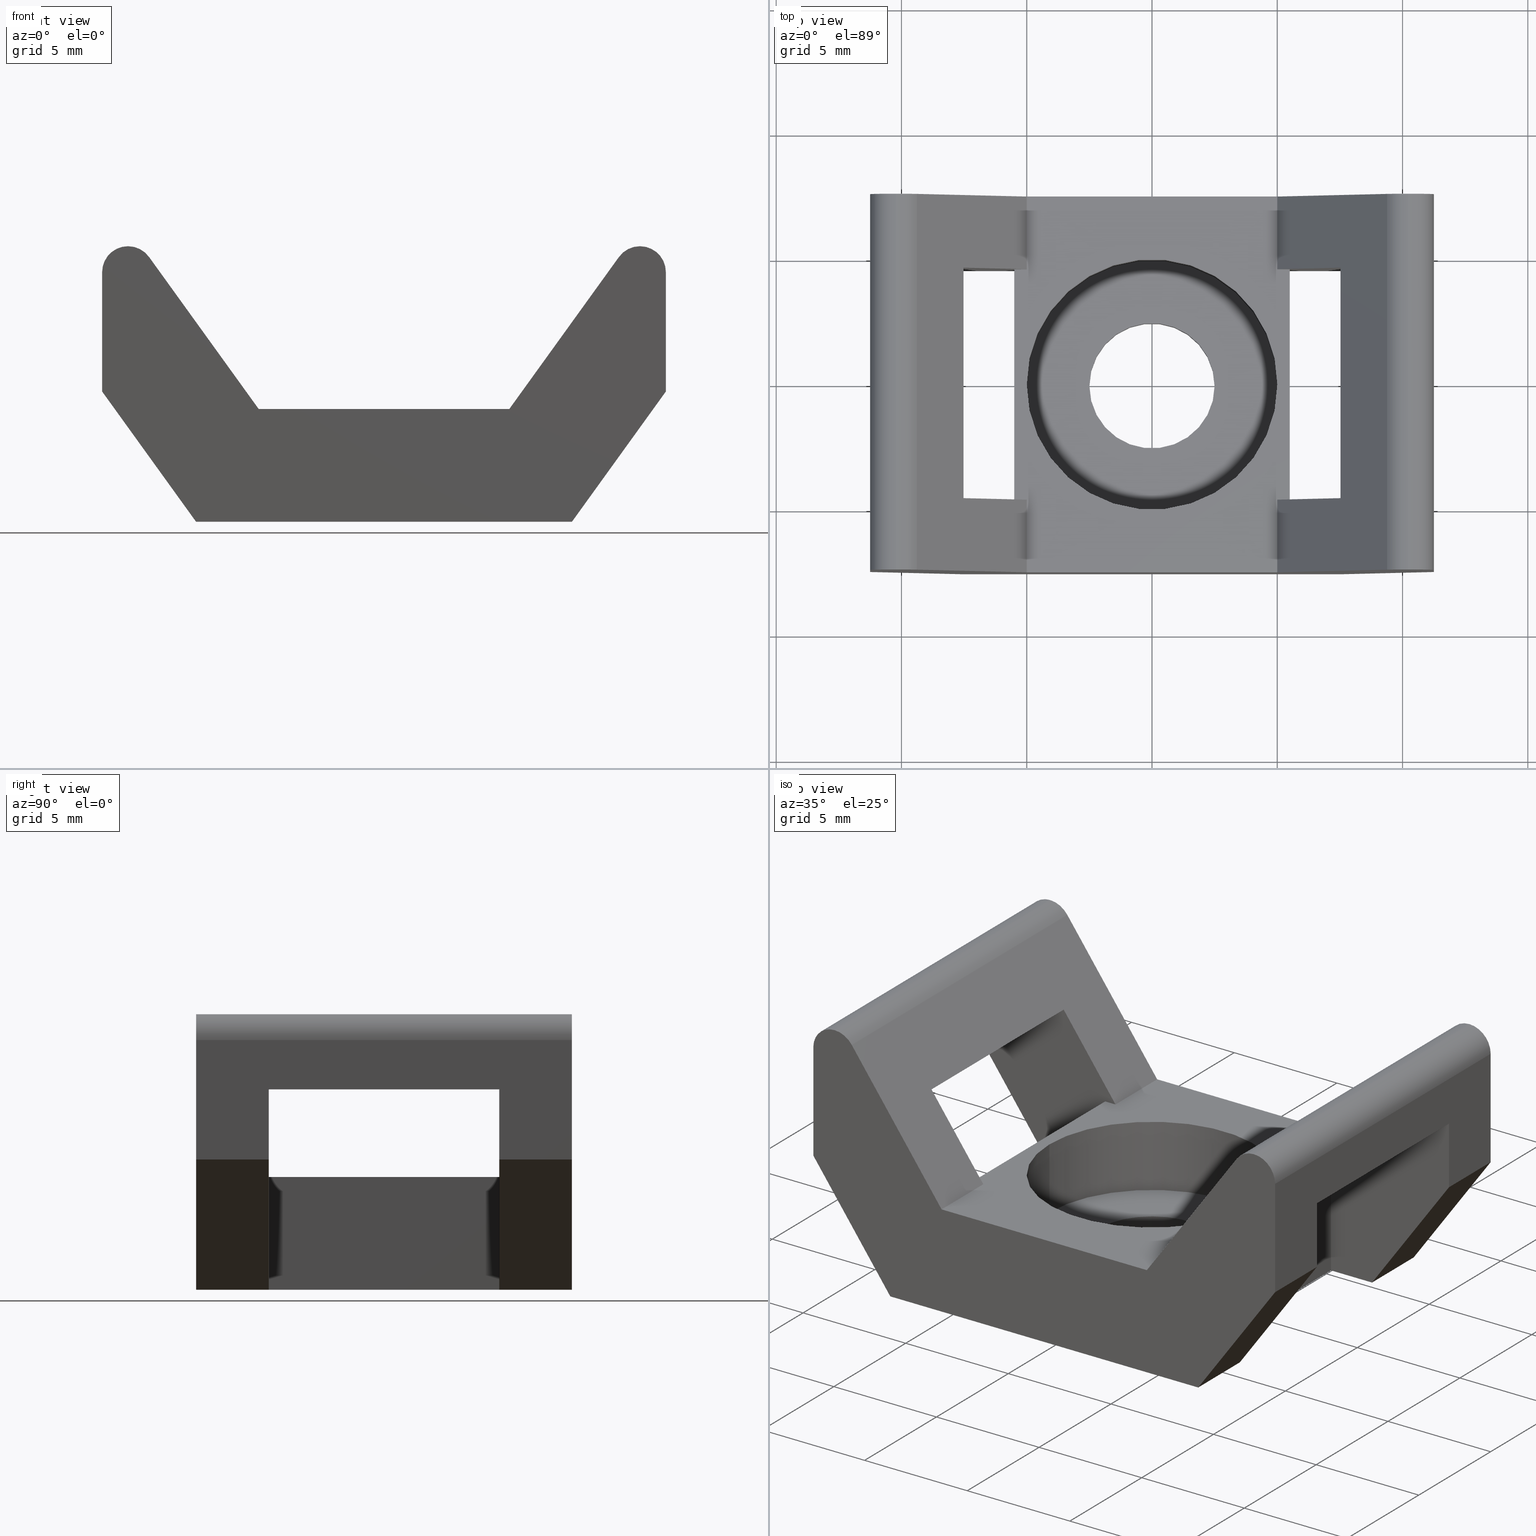
[diagram: canonical four-view strip — front | top / right | iso, engineering-drawing reading convention]
A machine part, canonical four-view strip (front | top / right | iso — engineering-drawing reading convention). The complete STEP part file that produces these views, byte-faithful:
ISO-10303-21;
HEADER;
FILE_DESCRIPTION (( 'STEP AP203' ),
    '1' );
FILE_NAME ('285400000_c_1.STEP',
    '2023-03-17T04:37:13',
    ( '' ),
    ( '' ),
    'SwSTEP 2.0',
    'SolidWorks 2014',
    '' );
FILE_SCHEMA (( 'CONFIG_CONTROL_DESIGN' ));
ENDSEC;

DATA;
#1 = CARTESIAN_POINT ( 'NONE',  ( -5.000000000000000000, 6.123233995736766300E-016, 1.500000000000000000 ) ) ;
#2 = CARTESIAN_POINT ( 'NONE',  ( 0.0000000000000000000, 0.0000000000000000000, 3.000000000000000000 ) ) ;
#3 = CARTESIAN_POINT ( 'NONE',  ( 9.378116215530869900, -7.500000000000000000, 10.57098781886948100 ) ) ;
#4 = CARTESIAN_POINT ( 'NONE',  ( -11.25000000000000000, 7.500000000000000000, 4.608755534657079900 ) ) ;
#5 = PLANE ( 'NONE',  #1065 ) ;
#6 = EDGE_LOOP ( 'NONE', ( #1077, #169, #1087, #907, #816, #1076, #1061 ) ) ;
#7 = CARTESIAN_POINT ( 'NONE',  ( 11.25000000000000000, 0.0000000000000000000, 5.200000000000001100 ) ) ;
#8 = LINE ( 'NONE', #598, #544 ) ;
#9 = ORIENTED_EDGE ( 'NONE', *, *, #251, .T. ) ;
#10 = VECTOR ( 'NONE', #156, 1000.000000000000000 ) ;
#11 = ORIENTED_EDGE ( 'NONE', *, *, #46, .F. ) ;
#12 = CC_DESIGN_PERSON_AND_ORGANIZATION_ASSIGNMENT ( #106, #960, ( #1056 ) ) ;
#13 = ORIENTED_EDGE ( 'NONE', *, *, #570, .F. ) ;
#14 = CARTESIAN_POINT ( 'NONE',  ( -11.24999999999999800, -4.599999999999999600, 8.000000000000010700 ) ) ;
#15 = DIRECTION ( 'NONE',  ( -0.0000000000000000000, -1.000000000000000000, -0.0000000000000000000 ) ) ;
#16 = EDGE_CURVE ( 'NONE', #324, #590, #821, .T. ) ;
#17 = AXIS2_PLACEMENT_3D ( 'NONE', #757, #835, #1082 ) ;
#18 = CARTESIAN_POINT ( 'NONE',  ( 7.500000000000000000, -7.500000000000000000, -8.673617379884035500E-016 ) ) ;
#19 = VECTOR ( 'NONE', #990, 1000.000000000000000 ) ;
#20 = VECTOR ( 'NONE', #737, 1000.000000000000000 ) ;
#21 = CARTESIAN_POINT ( 'NONE',  ( -11.25000000000000000, 0.0000000000000000000, 5.200000000000001100 ) ) ;
#22 = AXIS2_PLACEMENT_3D ( 'NONE', #270, #265, #965 ) ;
#23 = VERTEX_POINT ( 'NONE', #560 ) ;
#24 = LINE ( 'NONE', #769, #764 ) ;
#25 = ORIENTED_EDGE ( 'NONE', *, *, #488, .F. ) ;
#26 = ORIENTED_EDGE ( 'NONE', *, *, #792, .T. ) ;
#27 = CARTESIAN_POINT ( 'NONE',  ( -7.500000000000000000, 7.500000000000002700, 3.321799189091548800E-015 ) ) ;
#28 = EDGE_CURVE ( 'NONE', #244, #983, #633, .T. ) ;
#29 = LINE ( 'NONE', #316, #220 ) ;
#30 = LOCAL_TIME ( 21, 37, 13.00000000000000000, #878 ) ;
#31 = LINE ( 'NONE', #631, #371 ) ;
#32 = LINE ( 'NONE', #752, #430 ) ;
#33 = ORIENTED_EDGE ( 'NONE', *, *, #747, .F. ) ;
#34 = MECHANICAL_CONTEXT ( 'NONE', #449, 'mechanical' ) ;
#35 = VERTEX_POINT ( 'NONE', #1067 ) ;
#36 = DIRECTION ( 'NONE',  ( 1.000000000000000000, 0.0000000000000000000, 0.0000000000000000000 ) ) ;
#37 = EDGE_CURVE ( 'NONE', #590, #798, #597, .T. ) ;
#38 = LINE ( 'NONE', #909, #741 ) ;
#39 = FACE_BOUND ( 'NONE', #515, .T. ) ;
#40 = VECTOR ( 'NONE', #124, 1000.000000000000000 ) ;
#41 = ORIENTED_EDGE ( 'NONE', *, *, #37, .F. ) ;
#42 = CARTESIAN_POINT ( 'NONE',  ( -5.500000000000000000, 4.599999999999999600, 3.061616997868379900E-015 ) ) ;
#43 = CIRCLE ( 'NONE', #125, 5.000000000000000000 ) ;
#44 = VERTEX_POINT ( 'NONE', #151 ) ;
#45 = DIRECTION ( 'NONE',  ( 1.000000000000000000, 0.0000000000000000000, 0.0000000000000000000 ) ) ;
#46 = EDGE_CURVE ( 'NONE', #983, #440, #583, .T. ) ;
#47 = CARTESIAN_POINT ( 'NONE',  ( 11.25000000000000000, 4.599999999999999600, -2.066591473561160000E-015 ) ) ;
#48 = CARTESIAN_POINT ( 'NONE',  ( 5.500000000000000900, 4.599999999999999600, 4.500000000000000900 ) ) ;
#49 = ADVANCED_FACE ( 'NONE', ( #181 ), #659, .T. ) ;
#50 = CARTESIAN_POINT ( 'NONE',  ( 0.0000000000000000000, 0.0000000000000000000, -24.69332115398999900 ) ) ;
#51 = CARTESIAN_POINT ( 'NONE',  ( -5.000000000000000000, 7.500000000000000000, 4.500000000000000900 ) ) ;
#52 = ADVANCED_FACE ( 'NONE', ( #355 ), #594, .T. ) ;
#53 = VECTOR ( 'NONE', #804, 1000.000000000000000 ) ;
#54 = VECTOR ( 'NONE', #1019, 1000.000000000000200 ) ;
#55 = ORIENTED_EDGE ( 'NONE', *, *, #155, .F. ) ;
#56 = FACE_OUTER_BOUND ( 'NONE', #761, .T. ) ;
#57 = ORIENTED_EDGE ( 'NONE', *, *, #93, .T. ) ;
#58 = ORIENTED_EDGE ( 'NONE', *, *, #275, .T. ) ;
#59 = DIRECTION ( 'NONE',  ( 0.0000000000000000000, -1.000000000000000000, -0.0000000000000000000 ) ) ;
#60 = CARTESIAN_POINT ( 'NONE',  ( 11.25000000000000000, 7.500000000000000000, 5.200000000000001100 ) ) ;
#61 = EDGE_CURVE ( 'NONE', #294, #484, #347, .T. ) ;
#62 = CARTESIAN_POINT ( 'NONE',  ( 5.500000000000000000, 4.599999999999999600, 4.500000000000000900 ) ) ;
#63 = DIRECTION ( 'NONE',  ( 1.000000000000000000, 0.0000000000000000000, 0.0000000000000000000 ) ) ;
#64 = PLANE ( 'NONE',  #1032 ) ;
#65 = VECTOR ( 'NONE', #229, 1000.000000000000000 ) ;
#66 = FACE_OUTER_BOUND ( 'NONE', #748, .T. ) ;
#67 = DIRECTION ( 'NONE',  ( -0.0000000000000000000, -0.0000000000000000000, -1.000000000000000000 ) ) ;
#68 = EDGE_LOOP ( 'NONE', ( #99, #483, #787, #239, #338, #9, #871, #373, #800, #902, #58, #873 ) ) ;
#69 = VECTOR ( 'NONE', #899, 1000.000000000000100 ) ;
#70 = ADVANCED_FACE ( 'NONE', ( #126 ), #303, .T. ) ;
#71 = CARTESIAN_POINT ( 'NONE',  ( 11.24999999999999600, 7.500000000000000000, 9.966432677805810800 ) ) ;
#72 = AXIS2_PLACEMENT_3D ( 'NONE', #820, #981, #565 ) ;
#73 = DIRECTION ( 'NONE',  ( 0.5849209123409880900, 0.0000000000000000000, -0.8110903317795041800 ) ) ;
#74 = CARTESIAN_POINT ( 'NONE',  ( 5.000000000000000000, 0.0000000000000000000, 4.500000000000000900 ) ) ;
#75 = DIRECTION ( 'NONE',  ( -0.5849209123409882000, 0.0000000000000000000, -0.8110903317795040700 ) ) ;
#76 = CARTESIAN_POINT ( 'NONE',  ( -7.524038461538469700, 0.0000000000000000000, 8.000000000000000000 ) ) ;
#77 = DIRECTION ( 'NONE',  ( 0.0000000000000000000, 1.000000000000000000, 0.0000000000000000000 ) ) ;
#78 = EDGE_CURVE ( 'NONE', #468, #187, #195, .T. ) ;
#79 = CIRCLE ( 'NONE', #245, 1.033567322194190600 ) ;
#80 = PRODUCT_DEFINITION_FORMATION_WITH_SPECIFIED_SOURCE ( 'ANY', '', #116, .NOT_KNOWN. ) ;
#81 = LOCAL_TIME ( 21, 37, 13.00000000000000000, #533 ) ;
#82 = VECTOR ( 'NONE', #520, 1000.000000000000000 ) ;
#83 = ORIENTED_EDGE ( 'NONE', *, *, #959, .F. ) ;
#84 = LINE ( 'NONE', #1002, #842 ) ;
#85 = DIRECTION ( 'NONE',  ( 0.0000000000000000000, 0.0000000000000000000, 1.000000000000000000 ) ) ;
#86 = ORIENTED_EDGE ( 'NONE', *, *, #231, .T. ) ;
#87 = CARTESIAN_POINT ( 'NONE',  ( 11.25000000000000000, 4.599999999999999600, 5.200000000000001100 ) ) ;
#88 = ORIENTED_EDGE ( 'NONE', *, *, #203, .F. ) ;
#89 = DIRECTION ( 'NONE',  ( 0.0000000000000000000, 1.000000000000000000, 0.0000000000000000000 ) ) ;
#90 = CARTESIAN_POINT ( 'NONE',  ( -11.25000000000000000, -7.500000000000000000, 4.608755534657079900 ) ) ;
#91 = DIRECTION ( 'NONE',  ( -3.061616997868380200E-016, 0.0000000000000000000, -1.000000000000000000 ) ) ;
#92 = CARTESIAN_POINT ( 'NONE',  ( 7.524038461538469700, -4.599999999999999600, 8.000000000000000000 ) ) ;
#93 = EDGE_CURVE ( 'NONE', #536, #1042, #838, .T. ) ;
#94 = VECTOR ( 'NONE', #893, 1000.000000000000000 ) ;
#95 = DIRECTION ( 'NONE',  ( 0.0000000000000000000, 0.0000000000000000000, 1.000000000000000000 ) ) ;
#96 = VECTOR ( 'NONE', #760, 1000.000000000000000 ) ;
#97 = LINE ( 'NONE', #250, #1024 ) ;
#98 = ORIENTED_EDGE ( 'NONE', *, *, #354, .F. ) ;
#99 = ORIENTED_EDGE ( 'NONE', *, *, #277, .T. ) ;
#100 = ORIENTED_EDGE ( 'NONE', *, *, #711, .T. ) ;
#101 = CARTESIAN_POINT ( 'NONE',  ( -11.25000000000000200, 7.500000000000000900, 5.200000000000001100 ) ) ;
#102 = EDGE_CURVE ( 'NONE', #621, #1046, #139, .T. ) ;
#103 = AXIS2_PLACEMENT_3D ( 'NONE', #777, #540, #985 ) ;
#104 = DIRECTION ( 'NONE',  ( 0.0000000000000000000, -0.0000000000000000000, -1.000000000000000000 ) ) ;
#105 = ORIENTED_EDGE ( 'NONE', *, *, #541, .T. ) ;
#106 = PERSON_AND_ORGANIZATION ( #476, #1058 ) ;
#107 = DIRECTION ( 'NONE',  ( -0.0000000000000000000, 0.0000000000000000000, 1.000000000000000000 ) ) ;
#108 = ORIENTED_EDGE ( 'NONE', *, *, #292, .F. ) ;
#109 = VECTOR ( 'NONE', #348, 1000.000000000000000 ) ;
#110 = ORIENTED_EDGE ( 'NONE', *, *, #410, .F. ) ;
#111 = LINE ( 'NONE', #908, #10 ) ;
#112 = VERTEX_POINT ( 'NONE', #418 ) ;
#113 = DIRECTION ( 'NONE',  ( 0.0000000000000000000, 0.0000000000000000000, 1.000000000000000000 ) ) ;
#114 = ADVANCED_FACE ( 'NONE', ( #784 ), #505, .F. ) ;
#115 = CYLINDRICAL_SURFACE ( 'NONE', #461, 5.000000000000000000 ) ;
#116 = PRODUCT ( '285400000_c_1', '285400000_c_1', '', ( #34 ) ) ;
#117 = CYLINDRICAL_SURFACE ( 'NONE', #1085, 2.500000000000000000 ) ;
#118 = CALENDAR_DATE ( 2023, 16, 3 ) ;
#119 = ORIENTED_EDGE ( 'NONE', *, *, #393, .F. ) ;
#120 = APPROVAL_ROLE ( '' ) ;
#121 = EDGE_CURVE ( 'NONE', #470, #867, #317, .T. ) ;
#122 = CARTESIAN_POINT ( 'NONE',  ( -2.500000000000000000, 3.061616997868383100E-016, 1.500000000000001300 ) ) ;
#123 = CARTESIAN_POINT ( 'NONE',  ( -7.500000000000000000, 4.600000000000001400, 2.220446049250309900E-015 ) ) ;
#124 = DIRECTION ( 'NONE',  ( -0.0000000000000000000, -1.000000000000000000, -0.0000000000000000000 ) ) ;
#125 = AXIS2_PLACEMENT_3D ( 'NONE', #208, #807, #644 ) ;
#126 = FACE_OUTER_BOUND ( 'NONE', #217, .T. ) ;
#127 = LOCAL_TIME ( 21, 37, 13.00000000000000000, #575 ) ;
#128 = ORIENTED_EDGE ( 'NONE', *, *, #610, .T. ) ;
#129 = ORIENTED_EDGE ( 'NONE', *, *, #274, .F. ) ;
#130 = VECTOR ( 'NONE', #853, 1000.000000000000000 ) ;
#131 = ORIENTED_EDGE ( 'NONE', *, *, #898, .T. ) ;
#132 = ORIENTED_EDGE ( 'NONE', *, *, #959, .T. ) ;
#133 = DIRECTION ( 'NONE',  ( 0.0000000000000000000, 1.000000000000000000, -0.0000000000000000000 ) ) ;
#134 = CARTESIAN_POINT ( 'NONE',  ( 11.25000000000000000, 0.0000000000000000000, 5.200000000000001100 ) ) ;
#135 = CARTESIAN_POINT ( 'NONE',  ( 5.000000000000000000, -7.500000000000000000, 4.500000000000000900 ) ) ;
#136 = DIRECTION ( 'NONE',  ( 0.0000000000000000000, 1.000000000000000000, 0.0000000000000000000 ) ) ;
#137 = CARTESIAN_POINT ( 'NONE',  ( 7.524038461538467000, 0.0000000000000000000, 8.000000000000003600 ) ) ;
#138 = CARTESIAN_POINT ( 'NONE',  ( 11.25000000000000000, 4.600000000000001400, 5.200000000000001100 ) ) ;
#139 = LINE ( 'NONE', #846, #1057 ) ;
#140 = ADVANCED_FACE ( 'NONE', ( #157 ), #115, .F. ) ;
#141 = LINE ( 'NONE', #90, #395 ) ;
#142 = VERTEX_POINT ( 'NONE', #167 ) ;
#143 = LINE ( 'NONE', #1031, #743 ) ;
#144 = ORIENTED_EDGE ( 'NONE', *, *, #713, .F. ) ;
#145 = VERTEX_POINT ( 'NONE', #366 ) ;
#146 = VERTEX_POINT ( 'NONE', #534 ) ;
#147 = DIRECTION ( 'NONE',  ( 0.0000000000000000000, 0.0000000000000000000, 1.000000000000000000 ) ) ;
#148 = EDGE_CURVE ( 'NONE', #776, #808, #611, .T. ) ;
#149 = APPROVAL ( #806, 'UNSPECIFIED' ) ;
#150 = CARTESIAN_POINT ( 'NONE',  ( -10.21643267780580000, -7.500000000000000000, 9.966432677805819700 ) ) ;
#151 = CARTESIAN_POINT ( 'NONE',  ( 11.24999999999999600, -7.500000000000000000, 9.966432677805810800 ) ) ;
#152 = CARTESIAN_POINT ( 'NONE',  ( -11.25000000000000000, -4.599999999999999600, 5.200000000000001100 ) ) ;
#153 = ADVANCED_FACE ( 'NONE', ( #333 ), #511, .T. ) ;
#154 = DIRECTION ( 'NONE',  ( -0.0000000000000000000, -0.0000000000000000000, -1.000000000000000000 ) ) ;
#155 = EDGE_CURVE ( 'NONE', #870, #744, #932, .T. ) ;
#156 = DIRECTION ( 'NONE',  ( -1.000000000000000000, 0.0000000000000000000, -0.0000000000000000000 ) ) ;
#157 = FACE_OUTER_BOUND ( 'NONE', #859, .T. ) ;
#158 = LINE ( 'NONE', #596, #172 ) ;
#159 = ORIENTED_EDGE ( 'NONE', *, *, #519, .T. ) ;
#160 = CYLINDRICAL_SURFACE ( 'NONE', #228, 1.033567322194190600 ) ;
#161 = DIRECTION ( 'NONE',  ( 0.0000000000000000000, -0.0000000000000000000, -1.000000000000000000 ) ) ;
#162 = VERTEX_POINT ( 'NONE', #460 ) ;
#163 = EDGE_CURVE ( 'NONE', #112, #468, #279, .T. ) ;
#164 = CARTESIAN_POINT ( 'NONE',  ( -11.25000000000000000, -4.599999999999999600, 4.822046771642699600E-015 ) ) ;
#165 = PLANE ( 'NONE',  #911 ) ;
#166 = CARTESIAN_POINT ( 'NONE',  ( -10.21643267780580000, 7.500000000000000000, 9.966432677805819700 ) ) ;
#167 = CARTESIAN_POINT ( 'NONE',  ( 7.524038461538467000, 4.600000000000001400, 8.000000000000001800 ) ) ;
#168 = EDGE_CURVE ( 'NONE', #44, #381, #79, .T. ) ;
#169 = ORIENTED_EDGE ( 'NONE', *, *, #189, .F. ) ;
#170 = VECTOR ( 'NONE', #589, 1000.000000000000000 ) ;
#171 = VERTEX_POINT ( 'NONE', #302 ) ;
#172 = VECTOR ( 'NONE', #526, 1000.000000000000000 ) ;
#173 = PLANE ( 'NONE',  #707 ) ;
#174 = EDGE_LOOP ( 'NONE', ( #306, #394, #549, #626, #1091, #854, #984, #638 ) ) ;
#175 = EDGE_LOOP ( 'NONE', ( #958, #845, #390, #1044 ) ) ;
#176 = ORIENTED_EDGE ( 'NONE', *, *, #475, .T. ) ;
#177 = DIRECTION ( 'NONE',  ( -1.000000000000000000, 0.0000000000000000000, 3.061616997868380200E-016 ) ) ;
#178 = AXIS2_PLACEMENT_3D ( 'NONE', #607, #352, #36 ) ;
#179 = DIRECTION ( 'NONE',  ( 1.000000000000000000, 0.0000000000000000000, 0.0000000000000000000 ) ) ;
#180 = AXIS2_PLACEMENT_3D ( 'NONE', #620, #780, #95 ) ;
#181 = FACE_OUTER_BOUND ( 'NONE', #175, .T. ) ;
#182 = LINE ( 'NONE', #278, #968 ) ;
#183 = ORIENTED_EDGE ( 'NONE', *, *, #989, .T. ) ;
#184 = AXIS2_PLACEMENT_3D ( 'NONE', #1083, #392, #830 ) ;
#185 = EDGE_LOOP ( 'NONE', ( #924, #559, #443, #664 ) ) ;
#186 = LINE ( 'NONE', #917, #452 ) ;
#187 = VERTEX_POINT ( 'NONE', #122 ) ;
#188 = EDGE_LOOP ( 'NONE', ( #100, #128, #734, #1036 ) ) ;
#189 = EDGE_CURVE ( 'NONE', #536, #23, #701, .T. ) ;
#190 = CARTESIAN_POINT ( 'NONE',  ( -2.500000000000000000, 3.061616997868383100E-016, 0.0000000000000000000 ) ) ;
#191 = AXIS2_PLACEMENT_3D ( 'NONE', #1055, #975, #555 ) ;
#192 = DIRECTION ( 'NONE',  ( -1.000000000000000000, 0.0000000000000000000, 4.658507104463030200E-016 ) ) ;
#193 = ADVANCED_FACE ( 'NONE', ( #952 ), #977, .F. ) ;
#194 = EDGE_CURVE ( 'NONE', #1078, #1038, #29, .T. ) ;
#195 = CIRCLE ( 'NONE', #925, 2.500000000000000000 ) ;
#196 = LINE ( 'NONE', #740, #20 ) ;
#197 = ORIENTED_EDGE ( 'NONE', *, *, #610, .F. ) ;
#198 = LINE ( 'NONE', #668, #616 ) ;
#199 = VERTEX_POINT ( 'NONE', #837 ) ;
#200 = ORIENTED_EDGE ( 'NONE', *, *, #724, .T. ) ;
#201 = ORIENTED_EDGE ( 'NONE', *, *, #632, .F. ) ;
#202 = ADVANCED_FACE ( 'NONE', ( #557 ), #492, .F. ) ;
#203 = EDGE_CURVE ( 'NONE', #381, #808, #966, .T. ) ;
#204 = DIRECTION ( 'NONE',  ( -0.8110903317795036300, 0.0000000000000000000, -0.5849209123409887500 ) ) ;
#205 = CC_DESIGN_PERSON_AND_ORGANIZATION_ASSIGNMENT ( #334, #552, ( #80 ) ) ;
#206 = DIRECTION ( 'NONE',  ( 0.0000000000000000000, -0.0000000000000000000, -1.000000000000000000 ) ) ;
#207 = APPROVAL_STATUS ( 'not_yet_approved' ) ;
#208 = CARTESIAN_POINT ( 'NONE',  ( 0.0000000000000000000, 0.0000000000000000000, 4.500000000000000900 ) ) ;
#209 = EDGE_LOOP ( 'NONE', ( #921, #969, #131, #502 ) ) ;
#210 = CALENDAR_DATE ( 2023, 16, 3 ) ;
#211 = ORIENTED_EDGE ( 'NONE', *, *, #570, .T. ) ;
#212 = DIRECTION ( 'NONE',  ( 0.0000000000000000000, 0.0000000000000000000, 1.000000000000000000 ) ) ;
#213 = VERTEX_POINT ( 'NONE', #138 ) ;
#214 = LINE ( 'NONE', #566, #537 ) ;
#215 = EDGE_LOOP ( 'NONE', ( #563, #110, #1035, #374, #627, #841, #98, #1073 ) ) ;
#216 = EDGE_CURVE ( 'NONE', #294, #572, #944, .T. ) ;
#217 = EDGE_LOOP ( 'NONE', ( #585, #86, #386, #226 ) ) ;
#218 = EDGE_CURVE ( 'NONE', #112, #1059, #289, .T. ) ;
#219 = DESIGN_CONTEXT ( 'detailed design', #368, 'design' ) ;
#220 = VECTOR ( 'NONE', #987, 1000.000000000000000 ) ;
#221 = DIRECTION ( 'NONE',  ( -0.0000000000000000000, -0.0000000000000000000, -1.000000000000000000 ) ) ;
#222 = FACE_OUTER_BOUND ( 'NONE', #1092, .T. ) ;
#223 = ORIENTED_EDGE ( 'NONE', *, *, #410, .T. ) ;
#224 = LINE ( 'NONE', #137, #812 ) ;
#225 = EDGE_CURVE ( 'NONE', #415, #623, #889, .T. ) ;
#226 = ORIENTED_EDGE ( 'NONE', *, *, #28, .F. ) ;
#227 = ORIENTED_EDGE ( 'NONE', *, *, #625, .T. ) ;
#228 = AXIS2_PLACEMENT_3D ( 'NONE', #378, #1066, #391 ) ;
#229 = DIRECTION ( 'NONE',  ( 0.0000000000000000000, 1.000000000000000000, 0.0000000000000000000 ) ) ;
#230 = DIRECTION ( 'NONE',  ( -1.000000000000000000, -0.0000000000000000000, -0.0000000000000000000 ) ) ;
#231 = EDGE_CURVE ( 'NONE', #623, #922, #494, .T. ) ;
#232 = DIRECTION ( 'NONE',  ( 2.775557561562889900E-016, -0.0000000000000000000, 1.000000000000000000 ) ) ;
#233 = EDGE_CURVE ( 'NONE', #187, #468, #266, .T. ) ;
#234 = DIRECTION ( 'NONE',  ( 0.0000000000000000000, 1.000000000000000000, 0.0000000000000000000 ) ) ;
#235 = LINE ( 'NONE', #579, #691 ) ;
#236 = DIRECTION ( 'NONE',  ( -0.5849209123409866400, 0.0000000000000000000, 0.8110903317795051800 ) ) ;
#237 = CIRCLE ( 'NONE', #178, 5.000000000000000000 ) ;
#238 = VERTEX_POINT ( 'NONE', #60 ) ;
#239 = ORIENTED_EDGE ( 'NONE', *, *, #274, .T. ) ;
#240 = LINE ( 'NONE', #935, #130 ) ;
#241 = PLANE ( 'NONE',  #252 ) ;
#242 = ORIENTED_EDGE ( 'NONE', *, *, #771, .T. ) ;
#243 = DIRECTION ( 'NONE',  ( 2.775557561562889900E-016, -0.0000000000000000000, 1.000000000000000000 ) ) ;
#244 = VERTEX_POINT ( 'NONE', #653 ) ;
#245 = AXIS2_PLACEMENT_3D ( 'NONE', #298, #388, #464 ) ;
#246 = CARTESIAN_POINT ( 'NONE',  ( -7.500000000000000000, 0.0000000000000000000, 3.673940397442054400E-015 ) ) ;
#247 = CARTESIAN_POINT ( 'NONE',  ( 10.21643267780580000, 7.500000000000000000, 11.00000000000000200 ) ) ;
#248 = UNCERTAINTY_MEASURE_WITH_UNIT (LENGTH_MEASURE( 1.000000000000000100E-005 ), #962, 'distance_accuracy_value', 'NONE');
#249 = CARTESIAN_POINT ( 'NONE',  ( 0.0000000000000000000, 0.0000000000000000000, 1.500000000000001300 ) ) ;
#250 = CARTESIAN_POINT ( 'NONE',  ( 11.25000000000000000, 7.500000000000000000, 4.608755534657079900 ) ) ;
#251 = EDGE_CURVE ( 'NONE', #1038, #1070, #235, .T. ) ;
#252 = AXIS2_PLACEMENT_3D ( 'NONE', #988, #318, #736 ) ;
#253 = DIRECTION ( 'NONE',  ( 0.0000000000000000000, 1.000000000000000000, 0.0000000000000000000 ) ) ;
#254 = VECTOR ( 'NONE', #300, 1000.000000000000000 ) ;
#255 = VECTOR ( 'NONE', #177, 1000.000000000000000 ) ;
#256 = CIRCLE ( 'NONE', #688, 5.000000000000000000 ) ;
#257 = ORIENTED_EDGE ( 'NONE', *, *, #275, .F. ) ;
#258 = EDGE_LOOP ( 'NONE', ( #614, #11, #414, #108, #41, #766, #561, #504, #682, #83, #389, #576 ) ) ;
#259 = EDGE_CURVE ( 'NONE', #1059, #187, #916, .T. ) ;
#260 = CARTESIAN_POINT ( 'NONE',  ( -10.21643267780580000, 7.500000000000000000, 11.00000000000001100 ) ) ;
#261 = CARTESIAN_POINT ( 'NONE',  ( -9.378116215530869900, 0.0000000000000000000, 10.57098781886950100 ) ) ;
#262 = DIRECTION ( 'NONE',  ( 0.0000000000000000000, 0.0000000000000000000, 1.000000000000000000 ) ) ;
#263 = DIRECTION ( 'NONE',  ( 0.8110903317795036300, 0.0000000000000000000, -0.5849209123409887500 ) ) ;
#264 = EDGE_CURVE ( 'NONE', #813, #619, #38, .T. ) ;
#265 = DIRECTION ( 'NONE',  ( -0.0000000000000000000, -1.000000000000000000, -0.0000000000000000000 ) ) ;
#266 = CIRCLE ( 'NONE', #993, 2.500000000000000000 ) ;
#267 = VECTOR ( 'NONE', #341, 1000.000000000000000 ) ;
#268 = CIRCLE ( 'NONE', #423, 2.500000000000000000 ) ;
#269 = EDGE_LOOP ( 'NONE', ( #880, #708, #176, #469 ) ) ;
#270 = CARTESIAN_POINT ( 'NONE',  ( -10.21643267780580000, 7.500000000000000000, 9.966432677805819700 ) ) ;
#271 = ORIENTED_EDGE ( 'NONE', *, *, #342, .F. ) ;
#272 = VECTOR ( 'NONE', #346, 1000.000000000000000 ) ;
#273 = ORIENTED_EDGE ( 'NONE', *, *, #686, .T. ) ;
#274 = EDGE_CURVE ( 'NONE', #615, #1078, #574, .T. ) ;
#275 = EDGE_CURVE ( 'NONE', #375, #294, #196, .T. ) ;
#276 = ADVANCED_FACE ( 'NONE', ( #39, #222 ), #64, .T. ) ;
#277 = EDGE_CURVE ( 'NONE', #484, #527, #438, .T. ) ;
#278 = CARTESIAN_POINT ( 'NONE',  ( 5.500000000000000000, -4.599999999999999600, -3.061616997868380200E-016 ) ) ;
#279 = LINE ( 'NONE', #972, #53 ) ;
#280 = CALENDAR_DATE ( 2023, 16, 3 ) ;
#281 = VECTOR ( 'NONE', #405, 1000.000000000000000 ) ;
#282 = LINE ( 'NONE', #681, #705 ) ;
#283 = EDGE_LOOP ( 'NONE', ( #26, #129, #362, #296 ) ) ;
#284 = APPLICATION_PROTOCOL_DEFINITION ( 'international standard', 'config_control_design', 1994, #449 ) ;
#285 = ORIENTED_EDGE ( 'NONE', *, *, #542, .T. ) ;
#286 = PERSON_AND_ORGANIZATION_ROLE ( 'design_owner' ) ;
#287 = AXIS2_PLACEMENT_3D ( 'NONE', #356, #446, #703 ) ;
#288 = ADVANCED_FACE ( 'NONE', ( #66 ), #833, .F. ) ;
#289 = CIRCLE ( 'NONE', #751, 2.500000000000000000 ) ;
#290 = APPROVAL_STATUS ( 'not_yet_approved' ) ;
#291 = VECTOR ( 'NONE', #75, 1000.000000000000000 ) ;
#292 = EDGE_CURVE ( 'NONE', #798, #922, #496, .T. ) ;
#293 = FACE_BOUND ( 'NONE', #970, .T. ) ;
#294 = VERTEX_POINT ( 'NONE', #595 ) ;
#295 = CARTESIAN_POINT ( 'NONE',  ( -5.500000000000000000, -4.599999999999999600, 3.367778697655219700E-015 ) ) ;
#296 = ORIENTED_EDGE ( 'NONE', *, *, #669, .T. ) ;
#297 = LINE ( 'NONE', #815, #481 ) ;
#298 = CARTESIAN_POINT ( 'NONE',  ( 10.21643267780580000, -7.500000000000000000, 9.966432677805810800 ) ) ;
#299 = EDGE_CURVE ( 'NONE', #744, #35, #8, .T. ) ;
#300 = DIRECTION ( 'NONE',  ( -0.0000000000000000000, 0.0000000000000000000, 1.000000000000000000 ) ) ;
#301 = CARTESIAN_POINT ( 'NONE',  ( 7.500000000000000000, 0.0000000000000000000, -9.184850993605149900E-016 ) ) ;
#302 = CARTESIAN_POINT ( 'NONE',  ( -5.000000000000000000, 4.599999999999999600, 4.500000000000000900 ) ) ;
#303 = CYLINDRICAL_SURFACE ( 'NONE', #17, 1.033567322194190600 ) ;
#304 = APPROVAL_DATE_TIME ( #466, #939 ) ;
#305 = VECTOR ( 'NONE', #345, 1000.000000000000000 ) ;
#306 = ORIENTED_EDGE ( 'NONE', *, *, #46, .T. ) ;
#307 = LINE ( 'NONE', #123, #69 ) ;
#308 = APPROVAL ( #290, 'UNSPECIFIED' ) ;
#309 = ORIENTED_EDGE ( 'NONE', *, *, #37, .T. ) ;
#310 = DIRECTION ( 'NONE',  ( -0.5849209123409887500, 0.0000000000000000000, -0.8110903317795036300 ) ) ;
#311 = CARTESIAN_POINT ( 'NONE',  ( 6.286464388920090800E-016, 7.500000000000000000, 4.500000000000000900 ) ) ;
#312 = DIRECTION ( 'NONE',  ( 0.8110903317795036300, 0.0000000000000000000, -0.5849209123409887500 ) ) ;
#313 = EDGE_CURVE ( 'NONE', #213, #1070, #661, .T. ) ;
#314 = DIRECTION ( 'NONE',  ( 1.000000000000000000, -0.0000000000000000000, -3.061616997868380200E-016 ) ) ;
#315 = PLANE ( 'NONE',  #184 ) ;
#316 = CARTESIAN_POINT ( 'NONE',  ( 7.500000000000000000, 7.500000000000000000, -9.184850993605149900E-016 ) ) ;
#317 = LINE ( 'NONE', #76, #646 ) ;
#318 = DIRECTION ( 'NONE',  ( 0.0000000000000000000, 1.000000000000000000, -0.0000000000000000000 ) ) ;
#319 = ADVANCED_FACE ( 'NONE', ( #945 ), #670, .T. ) ;
#320 = LINE ( 'NONE', #931, #96 ) ;
#321 = COORDINATED_UNIVERSAL_TIME_OFFSET ( 8, 0, .BEHIND. ) ;
#322 = CARTESIAN_POINT ( 'NONE',  ( -5.000000000000000000, 0.0000000000000000000, 4.500000000000000900 ) ) ;
#323 = EDGE_CURVE ( 'NONE', #162, #955, #514, .T. ) ;
#324 = VERTEX_POINT ( 'NONE', #929 ) ;
#325 = ORIENTED_EDGE ( 'NONE', *, *, #910, .F. ) ;
#326 = ORIENTED_EDGE ( 'NONE', *, *, #102, .T. ) ;
#327 = CC_DESIGN_DATE_AND_TIME_ASSIGNMENT ( #647, #1050, ( #1056 ) ) ;
#328 = CARTESIAN_POINT ( 'NONE',  ( -5.000000000000000000, 0.0000000000000000000, 4.500000000000000900 ) ) ;
#329 = DIRECTION ( 'NONE',  ( 1.000000000000000000, 0.0000000000000000000, -2.775557561562889900E-016 ) ) ;
#330 = EDGE_CURVE ( 'NONE', #810, #429, #693, .T. ) ;
#331 = CARTESIAN_POINT ( 'NONE',  ( -11.25000000000000400, 0.0000000000000000000, 5.200000000000001100 ) ) ;
#332 = CARTESIAN_POINT ( 'NONE',  ( 5.000000000000000000, 4.599999999999999600, 4.500000000000000900 ) ) ;
#333 = FACE_OUTER_BOUND ( 'NONE', #269, .T. ) ;
#334 = PERSON_AND_ORGANIZATION ( #476, #1058 ) ;
#335 = ORIENTED_EDGE ( 'NONE', *, *, #225, .T. ) ;
#336 = VECTOR ( 'NONE', #941, 1000.000000000000000 ) ;
#337 = FACE_OUTER_BOUND ( 'NONE', #824, .T. ) ;
#338 = ORIENTED_EDGE ( 'NONE', *, *, #194, .T. ) ;
#339 = DIRECTION ( 'NONE',  ( 0.0000000000000000000, 0.0000000000000000000, 1.000000000000000000 ) ) ;
#340 = DIRECTION ( 'NONE',  ( 0.0000000000000000000, -0.0000000000000000000, -1.000000000000000000 ) ) ;
#341 = DIRECTION ( 'NONE',  ( -0.0000000000000000000, 0.0000000000000000000, 1.000000000000000000 ) ) ;
#342 = EDGE_CURVE ( 'NONE', #635, #615, #525, .T. ) ;
#343 = CARTESIAN_POINT ( 'NONE',  ( 5.500000000000000000, -4.599999999999999600, -3.061616997868375300E-016 ) ) ;
#344 = EDGE_CURVE ( 'NONE', #142, #453, #320, .T. ) ;
#345 = DIRECTION ( 'NONE',  ( -0.0000000000000000000, -1.000000000000000000, 0.0000000000000000000 ) ) ;
#346 = DIRECTION ( 'NONE',  ( -0.5849209123409866400, 0.0000000000000000000, -0.8110903317795051800 ) ) ;
#347 = LINE ( 'NONE', #246, #448 ) ;
#348 = DIRECTION ( 'NONE',  ( 0.0000000000000000000, 1.000000000000000000, -0.0000000000000000000 ) ) ;
#349 = LINE ( 'NONE', #332, #982 ) ;
#350 = ORIENTED_EDGE ( 'NONE', *, *, #771, .F. ) ;
#351 = ORIENTED_EDGE ( 'NONE', *, *, #218, .T. ) ;
#352 = DIRECTION ( 'NONE',  ( -0.0000000000000000000, -0.0000000000000000000, -1.000000000000000000 ) ) ;
#353 = EDGE_CURVE ( 'NONE', #798, #415, #954, .T. ) ;
#354 = EDGE_CURVE ( 'NONE', #827, #621, #879, .T. ) ;
#355 = FACE_OUTER_BOUND ( 'NONE', #457, .T. ) ;
#356 = CARTESIAN_POINT ( 'NONE',  ( 0.0000000000000000000, 0.0000000000000000000, 1.500000000000000000 ) ) ;
#357 = ORIENTED_EDGE ( 'NONE', *, *, #233, .T. ) ;
#358 = ORIENTED_EDGE ( 'NONE', *, *, #1026, .T. ) ;
#359 = FACE_BOUND ( 'NONE', #499, .T. ) ;
#360 = ADVANCED_BREP_SHAPE_REPRESENTATION ( '285400000_c_1', ( #709, #521 ), #1041 ) ;
#361 = EDGE_LOOP ( 'NONE', ( #1084, #733, #814, #271, #577, #892, #1048 ) ) ;
#362 = ORIENTED_EDGE ( 'NONE', *, *, #654, .T. ) ;
#363 = CARTESIAN_POINT ( 'NONE',  ( 5.000000000000000000, -4.599999999999999600, 4.500000000000000900 ) ) ;
#364 = APPROVAL_ROLE ( '' ) ;
#365 = CARTESIAN_POINT ( 'NONE',  ( 5.000000000000000000, 0.0000000000000000000, 4.500000000000000900 ) ) ;
#366 = CARTESIAN_POINT ( 'NONE',  ( -11.25000000000000200, -4.600000000000001400, 5.200000000000000200 ) ) ;
#367 = EDGE_CURVE ( 'NONE', #860, #1046, #717, .T. ) ;
#368 = APPLICATION_CONTEXT ( 'configuration controlled 3d designs of mechanical parts and assemblies' ) ;
#369 = CARTESIAN_POINT ( 'NONE',  ( -5.000000000000000000, 6.123233995736766300E-016, 4.500000000000000900 ) ) ;
#370 = VECTOR ( 'NONE', #926, 1000.000000000000000 ) ;
#371 = VECTOR ( 'NONE', #794, 1000.000000000000000 ) ;
#372 = ORIENTED_EDGE ( 'NONE', *, *, #1093, .F. ) ;
#373 = ORIENTED_EDGE ( 'NONE', *, *, #1093, .T. ) ;
#374 = ORIENTED_EDGE ( 'NONE', *, *, #768, .T. ) ;
#375 = VERTEX_POINT ( 'NONE', #687 ) ;
#376 = CARTESIAN_POINT ( 'NONE',  ( -7.500000000000000000, 0.0000000000000000000, 2.220446049250309900E-015 ) ) ;
#377 = EDGE_CURVE ( 'NONE', #244, #572, #141, .T. ) ;
#378 = CARTESIAN_POINT ( 'NONE',  ( 10.21643267780580000, 0.0000000000000000000, 9.966432677805810800 ) ) ;
#379 = CC_DESIGN_APPROVAL ( #308, ( #1056 ) ) ;
#380 = CARTESIAN_POINT ( 'NONE',  ( 11.25000000000000000, 0.0000000000000000000, 5.200000000000001100 ) ) ;
#381 = VERTEX_POINT ( 'NONE', #844 ) ;
#382 = EDGE_CURVE ( 'NONE', #35, #142, #349, .T. ) ;
#383 = LINE ( 'NONE', #613, #602 ) ;
#384 = ORIENTED_EDGE ( 'NONE', *, *, #168, .T. ) ;
#385 = DIRECTION ( 'NONE',  ( 1.000000000000000000, 0.0000000000000000000, 0.0000000000000000000 ) ) ;
#386 = ORIENTED_EDGE ( 'NONE', *, *, #420, .T. ) ;
#387 = VECTOR ( 'NONE', #253, 1000.000000000000000 ) ;
#388 = DIRECTION ( 'NONE',  ( -0.0000000000000000000, -1.000000000000000000, -0.0000000000000000000 ) ) ;
#389 = ORIENTED_EDGE ( 'NONE', *, *, #711, .F. ) ;
#390 = ORIENTED_EDGE ( 'NONE', *, *, #747, .T. ) ;
#391 = DIRECTION ( 'NONE',  ( 0.0000000000000000000, 0.0000000000000000000, 1.000000000000000000 ) ) ;
#392 = DIRECTION ( 'NONE',  ( 0.0000000000000000000, -1.000000000000000000, 0.0000000000000000000 ) ) ;
#393 = EDGE_CURVE ( 'NONE', #1042, #44, #967, .T. ) ;
#394 = ORIENTED_EDGE ( 'NONE', *, *, #669, .F. ) ;
#395 = VECTOR ( 'NONE', #421, 1000.000000000000000 ) ;
#396 = VERTEX_POINT ( 'NONE', #683 ) ;
#397 = FACE_OUTER_BOUND ( 'NONE', #174, .T. ) ;
#398 = ORIENTED_EDGE ( 'NONE', *, *, #382, .F. ) ;
#399 = VERTEX_POINT ( 'NONE', #863 ) ;
#400 = ORIENTED_EDGE ( 'NONE', *, *, #795, .F. ) ;
#401 = CARTESIAN_POINT ( 'NONE',  ( -11.25000000000000200, 4.600000000000001400, 5.200000000000001100 ) ) ;
#402 = DIRECTION ( 'NONE',  ( 1.000000000000000000, 0.0000000000000000000, -0.0000000000000000000 ) ) ;
#403 = EDGE_CURVE ( 'NONE', #827, #695, #891, .T. ) ;
#404 = DIRECTION ( 'NONE',  ( -0.0000000000000000000, -1.000000000000000000, 0.0000000000000000000 ) ) ;
#405 = DIRECTION ( 'NONE',  ( 1.000000000000000000, -0.0000000000000000000, -3.061616997868380200E-016 ) ) ;
#406 = DIRECTION ( 'NONE',  ( 1.000000000000000000, -0.0000000000000000000, 0.0000000000000000000 ) ) ;
#407 = ORIENTED_EDGE ( 'NONE', *, *, #1026, .F. ) ;
#408 = APPROVAL_PERSON_ORGANIZATION ( #545, #149, #883 ) ;
#409 = CARTESIAN_POINT ( 'NONE',  ( -11.24999999999999800, 0.0000000000000000000, 8.000000000000010700 ) ) ;
#410 = EDGE_CURVE ( 'NONE', #35, #324, #731, .T. ) ;
#411 = ORIENTED_EDGE ( 'NONE', *, *, #259, .T. ) ;
#412 = ORIENTED_EDGE ( 'NONE', *, *, #550, .F. ) ;
#413 = LINE ( 'NONE', #134, #1037 ) ;
#414 = ORIENTED_EDGE ( 'NONE', *, *, #420, .F. ) ;
#415 = VERTEX_POINT ( 'NONE', #435 ) ;
#416 = DIRECTION ( 'NONE',  ( 0.0000000000000000000, -1.000000000000000000, 0.0000000000000000000 ) ) ;
#417 = DIRECTION ( 'NONE',  ( -1.678384599364182100E-015, 0.0000000000000000000, 1.000000000000000000 ) ) ;
#418 = CARTESIAN_POINT ( 'NONE',  ( 2.500000000000000000, 0.0000000000000000000, 0.0000000000000000000 ) ) ;
#419 = CARTESIAN_POINT ( 'NONE',  ( 5.000000000000000000, 0.0000000000000000000, 1.500000000000000000 ) ) ;
#420 = EDGE_CURVE ( 'NONE', #922, #983, #465, .T. ) ;
#421 = DIRECTION ( 'NONE',  ( 0.0000000000000000000, -0.0000000000000000000, -1.000000000000000000 ) ) ;
#422 = DIRECTION ( 'NONE',  ( 0.0000000000000000000, 1.000000000000000000, -0.0000000000000000000 ) ) ;
#423 = AXIS2_PLACEMENT_3D ( 'NONE', #770, #262, #928 ) ;
#424 = DIRECTION ( 'NONE',  ( -1.000000000000000000, -0.0000000000000000000, -0.0000000000000000000 ) ) ;
#425 = CARTESIAN_POINT ( 'NONE',  ( 5.000000000000000000, 0.0000000000000000000, 3.000000000000000000 ) ) ;
#426 = DATE_AND_TIME ( #280, #30 ) ;
#427 = EDGE_CURVE ( 'NONE', #531, #429, #237, .T. ) ;
#428 = VECTOR ( 'NONE', #885, 1000.000000000000000 ) ;
#429 = VERTEX_POINT ( 'NONE', #365 ) ;
#430 = VECTOR ( 'NONE', #652, 1000.000000000000000 ) ;
#431 = DIRECTION ( 'NONE',  ( 0.0000000000000000000, -0.0000000000000000000, -1.000000000000000000 ) ) ;
#432 = ORIENTED_EDGE ( 'NONE', *, *, #456, .T. ) ;
#433 = DIRECTION ( 'NONE',  ( 0.5849209123409896400, 0.0000000000000000000, 0.8110903317795030700 ) ) ;
#434 = VERTEX_POINT ( 'NONE', #1 ) ;
#435 = CARTESIAN_POINT ( 'NONE',  ( -9.378116215530862800, -7.500000000000000000, 10.57098781886949000 ) ) ;
#436 = AXIS2_PLACEMENT_3D ( 'NONE', #380, #312, #310 ) ;
#437 = CARTESIAN_POINT ( 'NONE',  ( -11.25000000000000000, 7.500000000000000000, 9.966432677805819700 ) ) ;
#438 = LINE ( 'NONE', #920, #281 ) ;
#439 = APPROVAL_PERSON_ORGANIZATION ( #919, #939, #364 ) ;
#440 = VERTEX_POINT ( 'NONE', #101 ) ;
#441 = ORIENTED_EDGE ( 'NONE', *, *, #78, .F. ) ;
#442 = FACE_OUTER_BOUND ( 'NONE', #650, .T. ) ;
#443 = ORIENTED_EDGE ( 'NONE', *, *, #163, .T. ) ;
#444 = AXIS2_PLACEMENT_3D ( 'NONE', #641, #726, #1064 ) ;
#445 = ORIENTED_EDGE ( 'NONE', *, *, #600, .T. ) ;
#446 = DIRECTION ( 'NONE',  ( 0.0000000000000000000, 0.0000000000000000000, 1.000000000000000000 ) ) ;
#447 = DIRECTION ( 'NONE',  ( 4.658507104463030200E-016, 0.0000000000000000000, 1.000000000000000000 ) ) ;
#448 = VECTOR ( 'NONE', #89, 1000.000000000000000 ) ;
#449 = APPLICATION_CONTEXT ( 'configuration controlled 3d designs of mechanical parts and assemblies' ) ;
#450 = VECTOR ( 'NONE', #606, 1000.000000000000000 ) ;
#451 = ORIENTED_EDGE ( 'NONE', *, *, #643, .F. ) ;
#452 = VECTOR ( 'NONE', #234, 1000.000000000000000 ) ;
#453 = VERTEX_POINT ( 'NONE', #628 ) ;
#454 = CARTESIAN_POINT ( 'NONE',  ( 11.25000000000000000, 0.0000000000000000000, 8.000000000000000000 ) ) ;
#455 = ADVANCED_FACE ( 'NONE', ( #823 ), #1047, .T. ) ;
#456 = EDGE_CURVE ( 'NONE', #810, #434, #762, .T. ) ;
#457 = EDGE_LOOP ( 'NONE', ( #242, #840, #227, #201, #309, #543, #679, #1027 ) ) ;
#458 = SECURITY_CLASSIFICATION_LEVEL ( 'unclassified' ) ;
#459 = DIRECTION ( 'NONE',  ( -0.5849209123409887500, 0.0000000000000000000, 0.8110903317795036300 ) ) ;
#460 = CARTESIAN_POINT ( 'NONE',  ( -11.25000000000000200, 4.599999999999999600, 8.000000000000010700 ) ) ;
#461 = AXIS2_PLACEMENT_3D ( 'NONE', #2, #339, #675 ) ;
#462 = CARTESIAN_POINT ( 'NONE',  ( -7.500000000000000900, 4.600000000000001400, 2.878664562899133700E-015 ) ) ;
#463 = VECTOR ( 'NONE', #663, 1000.000000000000000 ) ;
#464 = DIRECTION ( 'NONE',  ( 0.0000000000000000000, 0.0000000000000000000, 1.000000000000000000 ) ) ;
#465 = CIRCLE ( 'NONE', #22, 1.033567322194190600 ) ;
#466 = DATE_AND_TIME ( #118, #127 ) ;
#467 = ORIENTED_EDGE ( 'NONE', *, *, #225, .F. ) ;
#468 = VERTEX_POINT ( 'NONE', #887 ) ;
#469 = ORIENTED_EDGE ( 'NONE', *, *, #403, .F. ) ;
#470 = VERTEX_POINT ( 'NONE', #1028 ) ;
#471 = DIRECTION ( 'NONE',  ( 0.0000000000000000000, 0.0000000000000000000, 1.000000000000000000 ) ) ;
#472 = CARTESIAN_POINT ( 'NONE',  ( 11.25000000000000000, -4.600000000000001400, 5.200000000000001100 ) ) ;
#473 = CARTESIAN_POINT ( 'NONE',  ( -11.25000000000000000, -4.599999999999999600, 4.822046771642699600E-015 ) ) ;
#474 = DIRECTION ( 'NONE',  ( 0.5849209123409887500, -0.0000000000000000000, 0.8110903317795036300 ) ) ;
#475 = EDGE_CURVE ( 'NONE', #808, #695, #704, .T. ) ;
#476 = PERSON ( 'UNSPECIFIED', 'UNSPECIFIED', 'UNSPECIFIED', ('UNSPECIFIED'), ('UNSPECIFIED'), ('UNSPECIFIED') ) ;
#477 = AXIS2_PLACEMENT_3D ( 'NONE', #943, #699, #783 ) ;
#478 = APPROVAL_DATE_TIME ( #426, #308 ) ;
#479 = PLANE ( 'NONE',  #436 ) ;
#480 = LINE ( 'NONE', #864, #255 ) ;
#481 = VECTOR ( 'NONE', #971, 1000.000000000000200 ) ;
#482 = CARTESIAN_POINT ( 'NONE',  ( -10.21643267780580000, 0.0000000000000000000, 11.00000000000001100 ) ) ;
#483 = ORIENTED_EDGE ( 'NONE', *, *, #1005, .T. ) ;
#484 = VERTEX_POINT ( 'NONE', #803 ) ;
#485 = CARTESIAN_POINT ( 'NONE',  ( -11.25000000000000000, 7.500000000000000000, 5.200000000000001100 ) ) ;
#486 = EDGE_CURVE ( 'NONE', #1070, #957, #480, .T. ) ;
#487 = DIRECTION ( 'NONE',  ( -0.0000000000000000000, -1.000000000000000000, -0.0000000000000000000 ) ) ;
#488 = EDGE_CURVE ( 'NONE', #744, #957, #933, .T. ) ;
#489 = CARTESIAN_POINT ( 'NONE',  ( -5.500000000000000000, 4.599999999999999600, 8.000000000000010700 ) ) ;
#490 = CARTESIAN_POINT ( 'NONE',  ( -7.500000000000000000, 0.0000000000000000000, 3.673940397442054400E-015 ) ) ;
#491 = CARTESIAN_POINT ( 'NONE',  ( -9.378116215530862800, 7.500000000000000000, 10.57098781886949000 ) ) ;
#492 = PLANE ( 'NONE',  #618 ) ;
#493 = EDGE_CURVE ( 'NONE', #635, #396, #31, .T. ) ;
#494 = LINE ( 'NONE', #482, #463 ) ;
#495 = ADVANCED_FACE ( 'NONE', ( #903 ), #714, .T. ) ;
#496 = CIRCLE ( 'NONE', #671, 1.033567322194190600 ) ;
#497 = LINE ( 'NONE', #712, #40 ) ;
#498 = ORIENTED_EDGE ( 'NONE', *, *, #216, .F. ) ;
#499 = EDGE_LOOP ( 'NONE', ( #351, #696 ) ) ;
#500 = LINE ( 'NONE', #1018, #272 ) ;
#501 = PLANE ( 'NONE',  #553 ) ;
#502 = ORIENTED_EDGE ( 'NONE', *, *, #768, .F. ) ;
#503 = DIRECTION ( 'NONE',  ( -1.678384599364182100E-015, 0.0000000000000000000, 1.000000000000000000 ) ) ;
#504 = ORIENTED_EDGE ( 'NONE', *, *, #475, .F. ) ;
#505 = PLANE ( 'NONE',  #719 ) ;
#506 = CARTESIAN_POINT ( 'NONE',  ( 9.378116215530869900, 7.500000000000000000, 10.57098781886948100 ) ) ;
#507 = DIRECTION ( 'NONE',  ( -0.0000000000000000000, 1.000000000000000000, 0.0000000000000000000 ) ) ;
#508 = DIRECTION ( 'NONE',  ( 1.000000000000000000, 0.0000000000000000000, 0.0000000000000000000 ) ) ;
#509 = DIRECTION ( 'NONE',  ( 0.0000000000000000000, 0.0000000000000000000, 1.000000000000000000 ) ) ;
#510 = CARTESIAN_POINT ( 'NONE',  ( 6.286464388920090800E-016, 7.500000000000000000, 4.608755534657079900 ) ) ;
#511 = CYLINDRICAL_SURFACE ( 'NONE', #834, 1.033567322194190600 ) ;
#512 = VECTOR ( 'NONE', #700, 1000.000000000000000 ) ;
#513 = DIRECTION ( 'NONE',  ( -1.000000000000000000, 0.0000000000000000000, -0.0000000000000000000 ) ) ;
#514 = LINE ( 'NONE', #409, #305 ) ;
#515 = EDGE_LOOP ( 'NONE', ( #211, #938 ) ) ;
#516 = CYLINDRICAL_SURFACE ( 'NONE', #1013, 1.033567322194190600 ) ;
#517 = ORIENTED_EDGE ( 'NONE', *, *, #354, .T. ) ;
#518 = ORIENTED_EDGE ( 'NONE', *, *, #16, .T. ) ;
#519 = EDGE_CURVE ( 'NONE', #470, #955, #535, .T. ) ;
#520 = DIRECTION ( 'NONE',  ( -0.5849209123409866400, 0.0000000000000000000, -0.8110903317795051800 ) ) ;
#521 = AXIS2_PLACEMENT_3D ( 'NONE', #1040, #212, #45 ) ;
#522 = CARTESIAN_POINT ( 'NONE',  ( -7.524038461538468800, 4.599999999999999600, 8.000000000000007100 ) ) ;
#523 = VECTOR ( 'NONE', #998, 1000.000000000000100 ) ;
#524 = EDGE_CURVE ( 'NONE', #23, #453, #678, .T. ) ;
#525 = LINE ( 'NONE', #1020, #599 ) ;
#526 = DIRECTION ( 'NONE',  ( -0.5849209123409866400, 0.0000000000000000000, 0.8110903317795051800 ) ) ;
#527 = VERTEX_POINT ( 'NONE', #295 ) ;
#528 = EDGE_LOOP ( 'NONE', ( #432, #980 ) ) ;
#529 = LINE ( 'NONE', #164, #697 ) ;
#530 = CARTESIAN_POINT ( 'NONE',  ( 11.25000000000000200, -7.500000000000002700, 5.200000000000001100 ) ) ;
#531 = VERTEX_POINT ( 'NONE', #369 ) ;
#532 = ADVANCED_FACE ( 'NONE', ( #622 ), #1072, .F. ) ;
#533 = COORDINATED_UNIVERSAL_TIME_OFFSET ( 8, 0, .BEHIND. ) ;
#534 = CARTESIAN_POINT ( 'NONE',  ( -5.000000000000000000, -7.500000000000000000, 4.500000000000000900 ) ) ;
#535 = LINE ( 'NONE', #547, #450 ) ;
#536 = VERTEX_POINT ( 'NONE', #1068 ) ;
#537 = VECTOR ( 'NONE', #59, 1000.000000000000000 ) ;
#538 = EDGE_LOOP ( 'NONE', ( #617, #698, #665, #325 ) ) ;
#539 = ADVANCED_FACE ( 'NONE', ( #855 ), #117, .F. ) ;
#540 = DIRECTION ( 'NONE',  ( 0.0000000000000000000, 0.0000000000000000000, 1.000000000000000000 ) ) ;
#541 = EDGE_CURVE ( 'NONE', #623, #244, #797, .T. ) ;
#542 = EDGE_CURVE ( 'NONE', #619, #536, #1022, .T. ) ;
#543 = ORIENTED_EDGE ( 'NONE', *, *, #353, .T. ) ;
#544 = VECTOR ( 'NONE', #513, 1000.000000000000000 ) ;
#545 = PERSON_AND_ORGANIZATION ( #476, #1058 ) ;
#546 = ORIENTED_EDGE ( 'NONE', *, *, #901, .T. ) ;
#547 = CARTESIAN_POINT ( 'NONE',  ( -11.25000000000000000, -4.599999999999999600, 8.000000000000010700 ) ) ;
#548 = ORIENTED_EDGE ( 'NONE', *, *, #313, .F. ) ;
#549 = ORIENTED_EDGE ( 'NONE', *, *, #886, .T. ) ;
#550 = EDGE_CURVE ( 'NONE', #621, #146, #715, .T. ) ;
#551 = ADVANCED_FACE ( 'NONE', ( #742 ), #160, .T. ) ;
#552 = PERSON_AND_ORGANIZATION_ROLE ( 'design_supplier' ) ;
#553 = AXIS2_PLACEMENT_3D ( 'NONE', #843, #755, #660 ) ;
#554 = AXIS2_PLACEMENT_3D ( 'NONE', #582, #591, #73 ) ;
#555 = DIRECTION ( 'NONE',  ( 0.0000000000000000000, -0.0000000000000000000, -1.000000000000000000 ) ) ;
#556 = DIRECTION ( 'NONE',  ( 0.0000000000000000000, -1.000000000000000000, 0.0000000000000000000 ) ) ;
#557 = FACE_OUTER_BOUND ( 'NONE', #209, .T. ) ;
#558 = FACE_OUTER_BOUND ( 'NONE', #528, .T. ) ;
#559 = ORIENTED_EDGE ( 'NONE', *, *, #218, .F. ) ;
#560 = CARTESIAN_POINT ( 'NONE',  ( 11.25000000000000200, -4.599999999999999600, 8.000000000000000000 ) ) ;
#561 = ORIENTED_EDGE ( 'NONE', *, *, #862, .F. ) ;
#562 = VECTOR ( 'NONE', #636, 1000.000000000000000 ) ;
#563 = ORIENTED_EDGE ( 'NONE', *, *, #862, .T. ) ;
#564 = ORIENTED_EDGE ( 'NONE', *, *, #866, .F. ) ;
#565 = DIRECTION ( 'NONE',  ( 0.0000000000000000000, 0.0000000000000000000, 1.000000000000000000 ) ) ;
#566 = CARTESIAN_POINT ( 'NONE',  ( -5.000000000000000000, 0.0000000000000000000, 4.500000000000000900 ) ) ;
#567 = ADVANCED_FACE ( 'NONE', ( #624 ), #479, .T. ) ;
#568 = DIRECTION ( 'NONE',  ( 0.0000000000000000000, -1.000000000000000000, -0.0000000000000000000 ) ) ;
#569 = CARTESIAN_POINT ( 'NONE',  ( 10.21643267780580000, 0.0000000000000000000, 11.00000000000000200 ) ) ;
#570 = EDGE_CURVE ( 'NONE', #429, #531, #43, .T. ) ;
#571 = ADVANCED_FACE ( 'NONE', ( #680 ), #640, .F. ) ;
#572 = VERTEX_POINT ( 'NONE', #642 ) ;
#573 = CC_DESIGN_PERSON_AND_ORGANIZATION_ASSIGNMENT ( #786, #890, ( #80 ) ) ;
#574 = LINE ( 'NONE', #490, #773 ) ;
#575 = COORDINATED_UNIVERSAL_TIME_OFFSET ( 8, 0, .BEHIND. ) ;
#576 = ORIENTED_EDGE ( 'NONE', *, *, #194, .F. ) ;
#577 = ORIENTED_EDGE ( 'NONE', *, *, #493, .T. ) ;
#578 = ORIENTED_EDGE ( 'NONE', *, *, #600, .F. ) ;
#579 = CARTESIAN_POINT ( 'NONE',  ( 7.500000000000000000, 0.0000000000000000000, -9.184850993605149900E-016 ) ) ;
#580 = DIRECTION ( 'NONE',  ( 1.000000000000000000, 0.0000000000000000000, 0.0000000000000000000 ) ) ;
#581 = DIRECTION ( 'NONE',  ( 1.000000000000000000, 0.0000000000000000000, 0.0000000000000000000 ) ) ;
#582 = CARTESIAN_POINT ( 'NONE',  ( -9.378116215530869900, 0.0000000000000000000, 10.57098781886950100 ) ) ;
#583 = LINE ( 'NONE', #4, #991 ) ;
#584 = APPROVAL_DATE_TIME ( #809, #149 ) ;
#585 = ORIENTED_EDGE ( 'NONE', *, *, #541, .F. ) ;
#586 = FACE_OUTER_BOUND ( 'NONE', #538, .T. ) ;
#587 = CARTESIAN_POINT ( 'NONE',  ( 7.524038461538468800, -4.599999999999999600, 8.000000000000000000 ) ) ;
#588 = EDGE_LOOP ( 'NONE', ( #745, #398, #1009, #1023, #706, #548, #578 ) ) ;
#589 = DIRECTION ( 'NONE',  ( 0.0000000000000000000, 0.0000000000000000000, 1.000000000000000000 ) ) ;
#590 = VERTEX_POINT ( 'NONE', #51 ) ;
#591 = DIRECTION ( 'NONE',  ( 0.8110903317795041800, -0.0000000000000000000, 0.5849209123409880900 ) ) ;
#592 = CARTESIAN_POINT ( 'NONE',  ( 5.500000000000000000, -4.599999999999999600, 4.500000000000000900 ) ) ;
#593 = CARTESIAN_POINT ( 'NONE',  ( 9.378116215530869900, -7.500000000000000000, 10.57098781886950100 ) ) ;
#594 = PLANE ( 'NONE',  #554 ) ;
#595 = CARTESIAN_POINT ( 'NONE',  ( -7.499999999999998200, -7.500000000000000900, 2.824873556341609300E-015 ) ) ;
#596 = CARTESIAN_POINT ( 'NONE',  ( -5.000000000000000000, -7.500000000000000000, 4.500000000000000900 ) ) ;
#597 = LINE ( 'NONE', #727, #728 ) ;
#598 = CARTESIAN_POINT ( 'NONE',  ( 11.25000000000000000, 4.599999999999999600, 4.500000000000000900 ) ) ;
#599 = VECTOR ( 'NONE', #674, 1000.000000000000000 ) ;
#600 = EDGE_CURVE ( 'NONE', #453, #213, #896, .T. ) ;
#601 = ORIENTED_EDGE ( 'NONE', *, *, #121, .F. ) ;
#602 = VECTOR ( 'NONE', #113, 1000.000000000000000 ) ;
#603 = ORIENTED_EDGE ( 'NONE', *, *, #163, .F. ) ;
#604 = ORIENTED_EDGE ( 'NONE', *, *, #299, .T. ) ;
#605 = CARTESIAN_POINT ( 'NONE',  ( 0.0000000000000000000, 0.0000000000000000000, 3.000000000000000000 ) ) ;
#606 = DIRECTION ( 'NONE',  ( -1.000000000000000000, -0.0000000000000000000, -0.0000000000000000000 ) ) ;
#607 = CARTESIAN_POINT ( 'NONE',  ( 0.0000000000000000000, 0.0000000000000000000, 4.500000000000000900 ) ) ;
#608 = AXIS2_PLACEMENT_3D ( 'NONE', #605, #85, #673 ) ;
#609 = CARTESIAN_POINT ( 'NONE',  ( -5.500000000000000000, 0.0000000000000000000, 3.061616997868378700E-015 ) ) ;
#610 = EDGE_CURVE ( 'NONE', #238, #213, #413, .T. ) ;
#611 = CIRCLE ( 'NONE', #444, 1.033567322194190600 ) ;
#612 = CALENDAR_DATE ( 2023, 16, 3 ) ;
#613 = CARTESIAN_POINT ( 'NONE',  ( -5.000000000000000000, 6.123233995736766300E-016, 3.000000000000000000 ) ) ;
#614 = ORIENTED_EDGE ( 'NONE', *, *, #792, .F. ) ;
#615 = VERTEX_POINT ( 'NONE', #462 ) ;
#616 = VECTOR ( 'NONE', #739, 1000.000000000000100 ) ;
#617 = ORIENTED_EDGE ( 'NONE', *, *, #493, .F. ) ;
#618 = AXIS2_PLACEMENT_3D ( 'NONE', #1075, #232, #329 ) ;
#619 = VERTEX_POINT ( 'NONE', #725 ) ;
#620 = CARTESIAN_POINT ( 'NONE',  ( 10.21643267780580000, 7.500000000000000000, 9.966432677805810800 ) ) ;
#621 = VERTEX_POINT ( 'NONE', #135 ) ;
#622 = FACE_OUTER_BOUND ( 'NONE', #856, .T. ) ;
#623 = VERTEX_POINT ( 'NONE', #730 ) ;
#624 = FACE_OUTER_BOUND ( 'NONE', #995, .T. ) ;
#625 = EDGE_CURVE ( 'NONE', #867, #171, #297, .T. ) ;
#626 = ORIENTED_EDGE ( 'NONE', *, *, #323, .T. ) ;
#627 = ORIENTED_EDGE ( 'NONE', *, *, #367, .T. ) ;
#628 = CARTESIAN_POINT ( 'NONE',  ( 11.25000000000000000, 4.599999999999999600, 8.000000000000000000 ) ) ;
#629 = PRODUCT_RELATED_PRODUCT_CATEGORY ( 'detail', '', ( #116 ) ) ;
#630 =( NAMED_UNIT ( * ) PLANE_ANGLE_UNIT ( ) SI_UNIT ( $, .RADIAN. ) );
#631 = CARTESIAN_POINT ( 'NONE',  ( -5.500000000000000000, 4.599999999999999600, 3.061616997868380300E-015 ) ) ;
#632 = EDGE_CURVE ( 'NONE', #590, #171, #214, .T. ) ;
#633 = LINE ( 'NONE', #915, #676 ) ;
#634 = LINE ( 'NONE', #18, #512 ) ;
#635 = VERTEX_POINT ( 'NONE', #42 ) ;
#636 = DIRECTION ( 'NONE',  ( -0.0000000000000000000, -1.000000000000000000, -0.0000000000000000000 ) ) ;
#637 = FACE_OUTER_BOUND ( 'NONE', #215, .T. ) ;
#638 = ORIENTED_EDGE ( 'NONE', *, *, #28, .T. ) ;
#639 = ORIENTED_EDGE ( 'NONE', *, *, #456, .F. ) ;
#640 = PLANE ( 'NONE',  #191 ) ;
#641 = CARTESIAN_POINT ( 'NONE',  ( 10.21643267780580000, 7.500000000000000000, 9.966432677805810800 ) ) ;
#642 = CARTESIAN_POINT ( 'NONE',  ( -11.25000000000000000, -7.500000000000000000, 5.200000000000001100 ) ) ;
#643 = EDGE_CURVE ( 'NONE', #619, #375, #789, .T. ) ;
#644 = DIRECTION ( 'NONE',  ( 1.000000000000000000, 0.0000000000000000000, 0.0000000000000000000 ) ) ;
#645 = CARTESIAN_POINT ( 'NONE',  ( 0.0000000000000000000, 0.0000000000000000000, 1.500000000000001300 ) ) ;
#646 = VECTOR ( 'NONE', #849, 1000.000000000000000 ) ;
#647 = DATE_AND_TIME ( #729, #81 ) ;
#648 = ORIENTED_EDGE ( 'NONE', *, *, #1049, .T. ) ;
#649 = VECTOR ( 'NONE', #657, 1000.000000000000000 ) ;
#650 = EDGE_LOOP ( 'NONE', ( #772, #498, #257, #358, #1088, #384, #1030, #517, #1062, #936, #335, #105 ) ) ;
#651 = ORIENTED_EDGE ( 'NONE', *, *, #323, .F. ) ;
#652 = DIRECTION ( 'NONE',  ( 1.000000000000000000, 0.0000000000000000000, 0.0000000000000000000 ) ) ;
#653 = CARTESIAN_POINT ( 'NONE',  ( -11.25000000000000000, -7.500000000000000000, 9.966432677805819700 ) ) ;
#654 = EDGE_CURVE ( 'NONE', #615, #720, #307, .T. ) ;
#655 = DIRECTION ( 'NONE',  ( -0.5849209123409885300, 0.0000000000000000000, 0.8110903317795038500 ) ) ;
#656 = ADVANCED_FACE ( 'NONE', ( #905 ), #241, .F. ) ;
#657 = DIRECTION ( 'NONE',  ( 0.5849209123409886400, 0.0000000000000000000, -0.8110903317795038500 ) ) ;
#658 = CARTESIAN_POINT ( 'NONE',  ( 0.0000000000000000000, 0.0000000000000000000, 0.0000000000000000000 ) ) ;
#659 = PLANE ( 'NONE',  #949 ) ;
#660 = DIRECTION ( 'NONE',  ( -2.775557561562889900E-016, 0.0000000000000000000, -1.000000000000000000 ) ) ;
#661 = LINE ( 'NONE', #87, #291 ) ;
#662 = CIRCLE ( 'NONE', #477, 1.033567322194190600 ) ;
#663 = DIRECTION ( 'NONE',  ( 0.0000000000000000000, 1.000000000000000000, 0.0000000000000000000 ) ) ;
#664 = ORIENTED_EDGE ( 'NONE', *, *, #233, .F. ) ;
#665 = ORIENTED_EDGE ( 'NONE', *, *, #901, .F. ) ;
#666 = VECTOR ( 'NONE', #568, 1000.000000000000000 ) ;
#667 = EDGE_LOOP ( 'NONE', ( #897, #882, #445, #197, #132, #829, #119, #826 ) ) ;
#668 = CARTESIAN_POINT ( 'NONE',  ( 11.25000000000000000, 7.500000000000003600, 5.200000000000001100 ) ) ;
#669 = EDGE_CURVE ( 'NONE', #720, #440, #186, .T. ) ;
#670 = PLANE ( 'NONE',  #999 ) ;
#671 = AXIS2_PLACEMENT_3D ( 'NONE', #166, #15, #417 ) ;
#672 = DIRECTION ( 'NONE',  ( -1.000000000000000000, 0.0000000000000000000, 2.775557561562889900E-016 ) ) ;
#673 = DIRECTION ( 'NONE',  ( 1.000000000000000000, 0.0000000000000000000, 0.0000000000000000000 ) ) ;
#674 = DIRECTION ( 'NONE',  ( -1.000000000000000000, 0.0000000000000000000, 3.061616997868380200E-016 ) ) ;
#675 = DIRECTION ( 'NONE',  ( 1.000000000000000000, 0.0000000000000000000, 0.0000000000000000000 ) ) ;
#676 = VECTOR ( 'NONE', #133, 1000.000000000000000 ) ;
#677 = PERSON_AND_ORGANIZATION ( #476, #1058 ) ;
#678 = LINE ( 'NONE', #454, #428 ) ;
#679 = ORIENTED_EDGE ( 'NONE', *, *, #976, .F. ) ;
#680 = FACE_OUTER_BOUND ( 'NONE', #6, .T. ) ;
#681 = CARTESIAN_POINT ( 'NONE',  ( -5.499999999999999100, -4.599999999999999600, 4.500000000000000900 ) ) ;
#682 = ORIENTED_EDGE ( 'NONE', *, *, #148, .F. ) ;
#683 = CARTESIAN_POINT ( 'NONE',  ( -5.500000000000000000, 4.599999999999999600, 4.500000000000000900 ) ) ;
#684 = ORIENTED_EDGE ( 'NONE', *, *, #292, .T. ) ;
#685 = DIRECTION ( 'NONE',  ( 2.775557561562889900E-016, 0.0000000000000000000, 1.000000000000000000 ) ) ;
#686 = EDGE_CURVE ( 'NONE', #162, #867, #1074, .T. ) ;
#687 = CARTESIAN_POINT ( 'NONE',  ( 7.500000000000000900, -7.500000000000000000, 8.155590145824205900E-016 ) ) ;
#688 = AXIS2_PLACEMENT_3D ( 'NONE', #912, #1090, #580 ) ;
#689 = CARTESIAN_POINT ( 'NONE',  ( 11.24999999999999100, 0.0000000000000000000, 9.966432677805810800 ) ) ;
#690 = DIRECTION ( 'NONE',  ( 1.000000000000000000, 0.0000000000000000000, 0.0000000000000000000 ) ) ;
#691 = VECTOR ( 'NONE', #996, 1000.000000000000000 ) ;
#692 = CARTESIAN_POINT ( 'NONE',  ( 11.25000000000000000, 0.0000000000000000000, 9.966432677805810800 ) ) ;
#693 = LINE ( 'NONE', #425, #170 ) ;
#694 = AXIS2_PLACEMENT_3D ( 'NONE', #692, #799, #710 ) ;
#695 = VERTEX_POINT ( 'NONE', #506 ) ;
#696 = ORIENTED_EDGE ( 'NONE', *, *, #951, .T. ) ;
#697 = VECTOR ( 'NONE', #340, 1000.000000000000000 ) ;
#698 = ORIENTED_EDGE ( 'NONE', *, *, #1005, .F. ) ;
#699 = DIRECTION ( 'NONE',  ( -0.0000000000000000000, -1.000000000000000000, -0.0000000000000000000 ) ) ;
#700 = DIRECTION ( 'NONE',  ( 0.5849209123409882000, 0.0000000000000000000, 0.8110903317795040700 ) ) ;
#701 = LINE ( 'NONE', #723, #254 ) ;
#702 = ADVANCED_FACE ( 'NONE', ( #442 ), #315, .T. ) ;
#703 = DIRECTION ( 'NONE',  ( 1.000000000000000000, 0.0000000000000000000, -0.0000000000000000000 ) ) ;
#704 = CIRCLE ( 'NONE', #180, 1.033567322194190600 ) ;
#705 = VECTOR ( 'NONE', #1025, 1000.000000000000000 ) ;
#706 = ORIENTED_EDGE ( 'NONE', *, *, #486, .F. ) ;
#707 = AXIS2_PLACEMENT_3D ( 'NONE', #510, #416, #431 ) ;
#708 = ORIENTED_EDGE ( 'NONE', *, *, #203, .T. ) ;
#709 = MANIFOLD_SOLID_BREP ( 'Volumenk\X\F6rper2', #788 ) ;
#710 = DIRECTION ( 'NONE',  ( 0.0000000000000000000, 0.0000000000000000000, -1.000000000000000000 ) ) ;
#711 = EDGE_CURVE ( 'NONE', #1038, #238, #198, .T. ) ;
#712 = CARTESIAN_POINT ( 'NONE',  ( 5.500000000000000000, 0.0000000000000000000, -3.061616997868389600E-016 ) ) ;
#713 = EDGE_CURVE ( 'NONE', #434, #810, #256, .T. ) ;
#714 = PLANE ( 'NONE',  #847 ) ;
#715 = LINE ( 'NONE', #735, #94 ) ;
#716 = DIRECTION ( 'NONE',  ( 0.0000000000000000000, 1.000000000000000000, -0.0000000000000000000 ) ) ;
#717 = LINE ( 'NONE', #92, #54 ) ;
#718 = FACE_OUTER_BOUND ( 'NONE', #258, .T. ) ;
#719 = AXIS2_PLACEMENT_3D ( 'NONE', #1012, #422, #509 ) ;
#720 = VERTEX_POINT ( 'NONE', #401 ) ;
#721 = LINE ( 'NONE', #689, #387 ) ;
#722 = DIRECTION ( 'NONE',  ( 0.0000000000000000000, 0.0000000000000000000, 1.000000000000000000 ) ) ;
#723 = CARTESIAN_POINT ( 'NONE',  ( 11.25000000000000000, -4.599999999999999600, -3.061616997868380200E-016 ) ) ;
#724 = EDGE_CURVE ( 'NONE', #199, #146, #881, .T. ) ;
#725 = CARTESIAN_POINT ( 'NONE',  ( 7.499999999999998200, -4.600000000000001400, -4.592425496802575000E-016 ) ) ;
#726 = DIRECTION ( 'NONE',  ( -0.0000000000000000000, -1.000000000000000000, -0.0000000000000000000 ) ) ;
#727 = CARTESIAN_POINT ( 'NONE',  ( -5.000000000000000000, 7.500000000000000000, 4.500000000000000900 ) ) ;
#728 = VECTOR ( 'NONE', #236, 1000.000000000000000 ) ;
#729 = CALENDAR_DATE ( 2023, 16, 3 ) ;
#730 = CARTESIAN_POINT ( 'NONE',  ( -10.21643267780580000, -7.500000000000000000, 11.00000000000001100 ) ) ;
#731 = LINE ( 'NONE', #1003, #918 ) ;
#732 = FACE_OUTER_BOUND ( 'NONE', #68, .T. ) ;
#733 = ORIENTED_EDGE ( 'NONE', *, *, #886, .F. ) ;
#734 = ORIENTED_EDGE ( 'NONE', *, *, #313, .T. ) ;
#735 = CARTESIAN_POINT ( 'NONE',  ( 6.286464388920090800E-016, -7.500000000000000000, 4.500000000000000900 ) ) ;
#736 = DIRECTION ( 'NONE',  ( 0.0000000000000000000, 0.0000000000000000000, 1.000000000000000000 ) ) ;
#737 = DIRECTION ( 'NONE',  ( -1.000000000000000000, 0.0000000000000000000, 3.061616997868380200E-016 ) ) ;
#738 = CC_DESIGN_SECURITY_CLASSIFICATION ( #1056, ( #80 ) ) ;
#739 = DIRECTION ( 'NONE',  ( 0.5849209123409887500, -0.0000000000000000000, 0.8110903317795036300 ) ) ;
#740 = CARTESIAN_POINT ( 'NONE',  ( 7.500000000000000000, -7.500000000000000000, -9.184850993605149900E-016 ) ) ;
#741 = VECTOR ( 'NONE', #314, 1000.000000000000000 ) ;
#742 = FACE_OUTER_BOUND ( 'NONE', #791, .T. ) ;
#743 = VECTOR ( 'NONE', #179, 1000.000000000000000 ) ;
#744 = VERTEX_POINT ( 'NONE', #62 ) ;
#745 = ORIENTED_EDGE ( 'NONE', *, *, #344, .F. ) ;
#746 = PLANE ( 'NONE',  #950 ) ;
#747 = EDGE_CURVE ( 'NONE', #145, #484, #1089, .T. ) ;
#748 = EDGE_LOOP ( 'NONE', ( #159, #651, #273, #601 ) ) ;
#749 = CARTESIAN_POINT ( 'NONE',  ( -2.500000000000000000, 3.061616997868383100E-016, -24.69332115398999900 ) ) ;
#750 = DIRECTION ( 'NONE',  ( -0.5849209123409887500, 0.0000000000000000000, 0.8110903317795036300 ) ) ;
#751 = AXIS2_PLACEMENT_3D ( 'NONE', #658, #147, #63 ) ;
#752 = CARTESIAN_POINT ( 'NONE',  ( -11.25000000000000000, -4.599999999999999600, 4.500000000000000900 ) ) ;
#753 = CARTESIAN_POINT ( 'NONE',  ( -8.375000000000000000, 0.0000000000000000000, 8.000000000000000000 ) ) ;
#754 = CARTESIAN_POINT ( 'NONE',  ( 11.25000000000000000, 0.0000000000000000000, 5.200000000000001100 ) ) ;
#755 = DIRECTION ( 'NONE',  ( 1.000000000000000000, 0.0000000000000000000, -2.775557561562889900E-016 ) ) ;
#756 = DIRECTION ( 'NONE',  ( 1.000000000000000000, 0.0000000000000000000, -2.775557561562889900E-016 ) ) ;
#757 = CARTESIAN_POINT ( 'NONE',  ( -10.21643267780580000, 0.0000000000000000000, 9.966432677805819700 ) ) ;
#758 = ORIENTED_EDGE ( 'NONE', *, *, #1069, .T. ) ;
#759 = LOCAL_TIME ( 21, 37, 13.00000000000000000, #321 ) ;
#760 = DIRECTION ( 'NONE',  ( 1.000000000000000000, -0.0000000000000000000, 0.0000000000000000000 ) ) ;
#761 = EDGE_LOOP ( 'NONE', ( #183, #372, #25, #55 ) ) ;
#762 = CIRCLE ( 'NONE', #973, 5.000000000000000000 ) ;
#763 = ORIENTED_EDGE ( 'NONE', *, *, #330, .T. ) ;
#764 = VECTOR ( 'NONE', #930, 1000.000000000000000 ) ;
#765 = DIRECTION ( 'NONE',  ( -0.8110903317795036300, 0.0000000000000000000, -0.5849209123409887500 ) ) ;
#766 = ORIENTED_EDGE ( 'NONE', *, *, #16, .F. ) ;
#767 = DIRECTION ( 'NONE',  ( -1.000000000000000000, 0.0000000000000000000, 3.061616997868380200E-016 ) ) ;
#768 = EDGE_CURVE ( 'NONE', #142, #860, #224, .T. ) ;
#769 = CARTESIAN_POINT ( 'NONE',  ( -5.500000000000000000, -4.599999999999999600, 3.061616997868380300E-015 ) ) ;
#770 = CARTESIAN_POINT ( 'NONE',  ( 0.0000000000000000000, 0.0000000000000000000, 0.0000000000000000000 ) ) ;
#771 = EDGE_CURVE ( 'NONE', #199, #470, #84, .T. ) ;
#772 = ORIENTED_EDGE ( 'NONE', *, *, #377, .T. ) ;
#773 = VECTOR ( 'NONE', #136, 1000.000000000000000 ) ;
#774 = SHAPE_DEFINITION_REPRESENTATION ( #851, #360 ) ;
#775 = CARTESIAN_POINT ( 'NONE',  ( -10.21643267780580000, 0.0000000000000000000, 9.966432677805819700 ) ) ;
#776 = VERTEX_POINT ( 'NONE', #71 ) ;
#777 = CARTESIAN_POINT ( 'NONE',  ( 0.0000000000000000000, 0.0000000000000000000, -24.69332115398999900 ) ) ;
#778 = ORIENTED_EDGE ( 'NONE', *, *, #353, .F. ) ;
#779 = AXIS2_PLACEMENT_3D ( 'NONE', #150, #487, #503 ) ;
#780 = DIRECTION ( 'NONE',  ( -0.0000000000000000000, -1.000000000000000000, -0.0000000000000000000 ) ) ;
#781 = AXIS2_PLACEMENT_3D ( 'NONE', #21, #192, #447 ) ;
#782 = EDGE_CURVE ( 'NONE', #171, #396, #111, .T. ) ;
#783 = DIRECTION ( 'NONE',  ( 0.0000000000000000000, 0.0000000000000000000, 1.000000000000000000 ) ) ;
#784 = FACE_OUTER_BOUND ( 'NONE', #361, .T. ) ;
#785 = AXIS2_PLACEMENT_3D ( 'NONE', #473, #556, #206 ) ;
#786 = PERSON_AND_ORGANIZATION ( #476, #1058 ) ;
#787 = ORIENTED_EDGE ( 'NONE', *, *, #342, .T. ) ;
#788 = CLOSED_SHELL ( 'NONE', ( #532, #70, #153, #140, #817, #539, #805, #193, #49, #702, #567, #571, #900, #656, #319, #914, #495, #114, #1053, #276, #1063, #288, #52, #828, #793, #551, #455, #202, #832 ) ) ;
#789 = LINE ( 'NONE', #301, #562 ) ;
#790 = DIRECTION ( 'NONE',  ( 0.0000000000000000000, 1.000000000000000000, 0.0000000000000000000 ) ) ;
#791 = EDGE_LOOP ( 'NONE', ( #88, #1029, #1006, #978 ) ) ;
#792 = EDGE_CURVE ( 'NONE', #440, #1078, #857, .T. ) ;
#793 = ADVANCED_FACE ( 'NONE', ( #637 ), #746, .T. ) ;
#794 = DIRECTION ( 'NONE',  ( 2.775557561562889900E-016, -0.0000000000000000000, 1.000000000000000000 ) ) ;
#795 = EDGE_CURVE ( 'NONE', #399, #199, #32, .T. ) ;
#796 = VECTOR ( 'NONE', #230, 1000.000000000000000 ) ;
#797 = CIRCLE ( 'NONE', #72, 1.033567322194190600 ) ;
#798 = VERTEX_POINT ( 'NONE', #491 ) ;
#799 = DIRECTION ( 'NONE',  ( 1.000000000000000000, -0.0000000000000000000, 0.0000000000000000000 ) ) ;
#800 = ORIENTED_EDGE ( 'NONE', *, *, #264, .T. ) ;
#801 = ORIENTED_EDGE ( 'NONE', *, *, #330, .F. ) ;
#802 = DATE_TIME_ROLE ( 'creation_date' ) ;
#803 = CARTESIAN_POINT ( 'NONE',  ( -7.500000000000000000, -4.600000000000001400, 3.455781087026155000E-015 ) ) ;
#804 = DIRECTION ( 'NONE',  ( 0.0000000000000000000, 0.0000000000000000000, 1.000000000000000000 ) ) ;
#805 = ADVANCED_FACE ( 'NONE', ( #586 ), #501, .F. ) ;
#806 = APPROVAL_STATUS ( 'not_yet_approved' ) ;
#807 = DIRECTION ( 'NONE',  ( -0.0000000000000000000, -0.0000000000000000000, -1.000000000000000000 ) ) ;
#808 = VERTEX_POINT ( 'NONE', #247 ) ;
#809 = DATE_AND_TIME ( #612, #1034 ) ;
#810 = VERTEX_POINT ( 'NONE', #419 ) ;
#811 = ORIENTED_EDGE ( 'NONE', *, *, #277, .F. ) ;
#812 = VECTOR ( 'NONE', #404, 1000.000000000000000 ) ;
#813 = VERTEX_POINT ( 'NONE', #343 ) ;
#814 = ORIENTED_EDGE ( 'NONE', *, *, #654, .F. ) ;
#815 = CARTESIAN_POINT ( 'NONE',  ( -7.524038461538469700, 4.599999999999999600, 8.000000000000000000 ) ) ;
#816 = ORIENTED_EDGE ( 'NONE', *, *, #989, .F. ) ;
#817 = ADVANCED_FACE ( 'NONE', ( #359, #732 ), #165, .T. ) ;
#818 = DIRECTION ( 'NONE',  ( 0.0000000000000000000, 1.000000000000000000, 0.0000000000000000000 ) ) ;
#819 = CC_DESIGN_PERSON_AND_ORGANIZATION_ASSIGNMENT ( #979, #286, ( #116 ) ) ;
#820 = CARTESIAN_POINT ( 'NONE',  ( -10.21643267780580000, -7.500000000000000000, 9.966432677805819700 ) ) ;
#821 = LINE ( 'NONE', #311, #796 ) ;
#822 = EDGE_CURVE ( 'NONE', #44, #776, #721, .T. ) ;
#823 = FACE_OUTER_BOUND ( 'NONE', #667, .T. ) ;
#824 = EDGE_LOOP ( 'NONE', ( #904, #639, #763, #947 ) ) ;
#825 = VECTOR ( 'NONE', #790, 1000.000000000000000 ) ;
#826 = ORIENTED_EDGE ( 'NONE', *, *, #93, .F. ) ;
#827 = VERTEX_POINT ( 'NONE', #3 ) ;
#828 = ADVANCED_FACE ( 'NONE', ( #1010 ), #516, .T. ) ;
#829 = ORIENTED_EDGE ( 'NONE', *, *, #822, .F. ) ;
#830 = DIRECTION ( 'NONE',  ( 0.0000000000000000000, -0.0000000000000000000, -1.000000000000000000 ) ) ;
#831 = DIRECTION ( 'NONE',  ( 0.5849209123409887500, 0.0000000000000000000, 0.8110903317795036300 ) ) ;
#832 = ADVANCED_FACE ( 'NONE', ( #337 ), #956, .F. ) ;
#833 = PLANE ( 'NONE',  #888 ) ;
#834 = AXIS2_PLACEMENT_3D ( 'NONE', #974, #818, #471 ) ;
#835 = DIRECTION ( 'NONE',  ( 0.0000000000000000000, 1.000000000000000000, 0.0000000000000000000 ) ) ;
#836 = PRODUCT_DEFINITION ( 'UNKNOWN', '', #80, #219 ) ;
#837 = CARTESIAN_POINT ( 'NONE',  ( -5.000000000000000000, -4.599999999999999600, 4.500000000000000900 ) ) ;
#838 = LINE ( 'NONE', #754, #370 ) ;
#839 = COORDINATED_UNIVERSAL_TIME_OFFSET ( 8, 0, .BEHIND. ) ;
#840 = ORIENTED_EDGE ( 'NONE', *, *, #121, .T. ) ;
#841 = ORIENTED_EDGE ( 'NONE', *, *, #102, .F. ) ;
#842 = VECTOR ( 'NONE', #655, 1000.000000000000100 ) ;
#843 = CARTESIAN_POINT ( 'NONE',  ( -5.500000000000000000, -4.599999999999999600, 3.061616997868380300E-015 ) ) ;
#844 = CARTESIAN_POINT ( 'NONE',  ( 10.21643267780580000, -7.500000000000000000, 11.00000000000000200 ) ) ;
#845 = ORIENTED_EDGE ( 'NONE', *, *, #927, .T. ) ;
#846 = CARTESIAN_POINT ( 'NONE',  ( 5.000000000000000000, 0.0000000000000000000, 4.500000000000000900 ) ) ;
#847 = AXIS2_PLACEMENT_3D ( 'NONE', #376, #204, #459 ) ;
#848 = DIRECTION ( 'NONE',  ( 0.0000000000000000000, 0.0000000000000000000, 1.000000000000000000 ) ) ;
#849 = DIRECTION ( 'NONE',  ( 0.0000000000000000000, 1.000000000000000000, 0.0000000000000000000 ) ) ;
#850 = CARTESIAN_POINT ( 'NONE',  ( 5.500000000000000000, -4.599999999999999600, 8.000000000000000000 ) ) ;
#851 = PRODUCT_DEFINITION_SHAPE ( 'NONE', 'NONE',  #836 ) ;
#852 = CARTESIAN_POINT ( 'NONE',  ( 11.25000000000000000, -7.500000000000000000, 4.608755534657079900 ) ) ;
#853 = DIRECTION ( 'NONE',  ( 0.0000000000000000000, 0.0000000000000000000, 1.000000000000000000 ) ) ;
#854 = ORIENTED_EDGE ( 'NONE', *, *, #927, .F. ) ;
#855 = FACE_OUTER_BOUND ( 'NONE', #185, .T. ) ;
#856 = EDGE_LOOP ( 'NONE', ( #946, #411, #441, #603 ) ) ;
#857 = LINE ( 'NONE', #485, #649 ) ;
#858 = ORIENTED_EDGE ( 'NONE', *, *, #632, .T. ) ;
#859 = EDGE_LOOP ( 'NONE', ( #144, #648, #13, #801 ) ) ;
#860 = VERTEX_POINT ( 'NONE', #587 ) ;
#861 = CARTESIAN_POINT ( 'NONE',  ( 7.500000000000000000, 0.0000000000000000000, -9.184850993605149900E-016 ) ) ;
#862 = EDGE_CURVE ( 'NONE', #695, #324, #500, .T. ) ;
#863 = CARTESIAN_POINT ( 'NONE',  ( -5.500000000000000000, -4.599999999999999600, 4.500000000000000900 ) ) ;
#864 = CARTESIAN_POINT ( 'NONE',  ( 7.500000000000000000, 4.599999999999999600, -9.184850993605149900E-016 ) ) ;
#865 = DIRECTION ( 'NONE',  ( 0.0000000000000000000, 0.0000000000000000000, 1.000000000000000000 ) ) ;
#866 = EDGE_CURVE ( 'NONE', #955, #145, #529, .T. ) ;
#867 = VERTEX_POINT ( 'NONE', #522 ) ;
#868 = VECTOR ( 'NONE', #1004, 1000.000000000000000 ) ;
#869 = CARTESIAN_POINT ( 'NONE',  ( 7.500000000000000900, 7.500000000000000900, 1.598697729521606500E-015 ) ) ;
#870 = VERTEX_POINT ( 'NONE', #592 ) ;
#871 = ORIENTED_EDGE ( 'NONE', *, *, #486, .T. ) ;
#872 = VECTOR ( 'NONE', #406, 1000.000000000000000 ) ;
#873 = ORIENTED_EDGE ( 'NONE', *, *, #61, .T. ) ;
#874 = EDGE_LOOP ( 'NONE', ( #1014, #350, #400, #546, #811, #33, #564 ) ) ;
#875 = PLANE ( 'NONE',  #287 ) ;
#876 = APPLICATION_PROTOCOL_DEFINITION ( 'international standard', 'config_control_design', 1994, #368 ) ;
#877 = EDGE_LOOP ( 'NONE', ( #1008, #467, #778, #684 ) ) ;
#878 = COORDINATED_UNIVERSAL_TIME_OFFSET ( 8, 0, .BEHIND. ) ;
#879 = LINE ( 'NONE', #593, #82 ) ;
#880 = ORIENTED_EDGE ( 'NONE', *, *, #1051, .F. ) ;
#881 = LINE ( 'NONE', #328, #666 ) ;
#882 = ORIENTED_EDGE ( 'NONE', *, *, #524, .T. ) ;
#883 = APPROVAL_ROLE ( '' ) ;
#884 = ORIENTED_EDGE ( 'NONE', *, *, #910, .T. ) ;
#885 = DIRECTION ( 'NONE',  ( 0.0000000000000000000, 1.000000000000000000, 0.0000000000000000000 ) ) ;
#886 = EDGE_CURVE ( 'NONE', #720, #162, #240, .T. ) ;
#887 = CARTESIAN_POINT ( 'NONE',  ( 2.500000000000000000, 0.0000000000000000000, 1.500000000000001300 ) ) ;
#888 = AXIS2_PLACEMENT_3D ( 'NONE', #753, #243, #756 ) ;
#889 = CIRCLE ( 'NONE', #779, 1.033567322194190600 ) ;
#890 = PERSON_AND_ORGANIZATION_ROLE ( 'creator' ) ;
#891 = LINE ( 'NONE', #937, #109 ) ;
#892 = ORIENTED_EDGE ( 'NONE', *, *, #782, .F. ) ;
#893 = DIRECTION ( 'NONE',  ( -1.000000000000000000, -0.0000000000000000000, -0.0000000000000000000 ) ) ;
#894 = CC_DESIGN_DATE_AND_TIME_ASSIGNMENT ( #1086, #802, ( #836 ) ) ;
#895 = ORIENTED_EDGE ( 'NONE', *, *, #78, .T. ) ;
#896 = LINE ( 'NONE', #47, #1060 ) ;
#897 = ORIENTED_EDGE ( 'NONE', *, *, #189, .T. ) ;
#898 = EDGE_CURVE ( 'NONE', #23, #860, #923, .T. ) ;
#899 = DIRECTION ( 'NONE',  ( -0.5849209123409887500, 0.0000000000000000000, 0.8110903317795036300 ) ) ;
#900 = ADVANCED_FACE ( 'NONE', ( #56 ), #5, .F. ) ;
#901 = EDGE_CURVE ( 'NONE', #399, #527, #24, .T. ) ;
#902 = ORIENTED_EDGE ( 'NONE', *, *, #643, .T. ) ;
#903 = FACE_OUTER_BOUND ( 'NONE', #283, .T. ) ;
#904 = ORIENTED_EDGE ( 'NONE', *, *, #1049, .F. ) ;
#905 = FACE_OUTER_BOUND ( 'NONE', #588, .T. ) ;
#906 = ORIENTED_EDGE ( 'NONE', *, *, #782, .T. ) ;
#907 = ORIENTED_EDGE ( 'NONE', *, *, #264, .F. ) ;
#908 = CARTESIAN_POINT ( 'NONE',  ( -5.500000000000000000, 4.599999999999999600, 4.500000000000000900 ) ) ;
#909 = CARTESIAN_POINT ( 'NONE',  ( 7.500000000000000000, -4.599999999999999600, -9.184850993605149900E-016 ) ) ;
#910 = EDGE_CURVE ( 'NONE', #396, #399, #282, .T. ) ;
#911 = AXIS2_PLACEMENT_3D ( 'NONE', #861, #91, #767 ) ;
#912 = CARTESIAN_POINT ( 'NONE',  ( 0.0000000000000000000, 0.0000000000000000000, 1.500000000000000000 ) ) ;
#913 = DIRECTION ( 'NONE',  ( 0.0000000000000000000, 0.0000000000000000000, 1.000000000000000000 ) ) ;
#914 = ADVANCED_FACE ( 'NONE', ( #718 ), #173, .F. ) ;
#915 = CARTESIAN_POINT ( 'NONE',  ( -11.24999999999999800, 0.0000000000000000000, 9.966432677805819700 ) ) ;
#916 = LINE ( 'NONE', #749, #19 ) ;
#917 = CARTESIAN_POINT ( 'NONE',  ( -11.25000000000000400, 0.0000000000000000000, 5.200000000000001100 ) ) ;
#918 = VECTOR ( 'NONE', #507, 1000.000000000000000 ) ;
#919 = PERSON_AND_ORGANIZATION ( #476, #1058 ) ;
#920 = CARTESIAN_POINT ( 'NONE',  ( 7.500000000000000000, -4.599999999999999600, -9.184850993605149900E-016 ) ) ;
#921 = ORIENTED_EDGE ( 'NONE', *, *, #344, .T. ) ;
#922 = VERTEX_POINT ( 'NONE', #260 ) ;
#923 = LINE ( 'NONE', #850, #934 ) ;
#924 = ORIENTED_EDGE ( 'NONE', *, *, #259, .F. ) ;
#925 = AXIS2_PLACEMENT_3D ( 'NONE', #249, #154, #508 ) ;
#926 = DIRECTION ( 'NONE',  ( -0.0000000000000000000, -1.000000000000000000, -0.0000000000000000000 ) ) ;
#927 = EDGE_CURVE ( 'NONE', #572, #145, #1045, .T. ) ;
#928 = DIRECTION ( 'NONE',  ( 1.000000000000000000, 0.0000000000000000000, 0.0000000000000000000 ) ) ;
#929 = CARTESIAN_POINT ( 'NONE',  ( 5.000000000000000000, 7.500000000000000000, 4.500000000000000900 ) ) ;
#930 = DIRECTION ( 'NONE',  ( -2.775557561562889900E-016, 0.0000000000000000000, -1.000000000000000000 ) ) ;
#931 = CARTESIAN_POINT ( 'NONE',  ( 11.25000000000000000, 4.599999999999999600, 8.000000000000000000 ) ) ;
#932 = LINE ( 'NONE', #48, #1021 ) ;
#933 = LINE ( 'NONE', #963, #1043 ) ;
#934 = VECTOR ( 'NONE', #424, 1000.000000000000000 ) ;
#935 = CARTESIAN_POINT ( 'NONE',  ( -11.25000000000000000, 4.599999999999999600, 3.061616997868380300E-015 ) ) ;
#936 = ORIENTED_EDGE ( 'NONE', *, *, #976, .T. ) ;
#937 = CARTESIAN_POINT ( 'NONE',  ( 9.378116215530887700, 0.0000000000000000000, 10.57098781886949000 ) ) ;
#938 = ORIENTED_EDGE ( 'NONE', *, *, #427, .T. ) ;
#939 = APPROVAL ( #207, 'UNSPECIFIED' ) ;
#940 = CARTESIAN_POINT ( 'NONE',  ( 5.500000000000000000, 4.599999999999999600, -6.123233995736760400E-016 ) ) ;
#941 = DIRECTION ( 'NONE',  ( -0.0000000000000000000, -1.000000000000000000, -0.0000000000000000000 ) ) ;
#942 = CARTESIAN_POINT ( 'NONE',  ( 0.0000000000000000000, 0.0000000000000000000, 1.500000000000000000 ) ) ;
#943 = CARTESIAN_POINT ( 'NONE',  ( 10.21643267780580000, -7.500000000000000000, 9.966432677805810800 ) ) ;
#944 = LINE ( 'NONE', #1081, #523 ) ;
#945 = FACE_OUTER_BOUND ( 'NONE', #188, .T. ) ;
#946 = ORIENTED_EDGE ( 'NONE', *, *, #951, .F. ) ;
#947 = ORIENTED_EDGE ( 'NONE', *, *, #427, .F. ) ;
#948 = VECTOR ( 'NONE', #997, 1000.000000000000000 ) ;
#949 = AXIS2_PLACEMENT_3D ( 'NONE', #1017, #765, #750 ) ;
#950 = AXIS2_PLACEMENT_3D ( 'NONE', #74, #1080, #831 ) ;
#951 = EDGE_CURVE ( 'NONE', #1059, #112, #268, .T. ) ;
#952 = FACE_OUTER_BOUND ( 'NONE', #874, .T. ) ;
#953 = PLANE ( 'NONE',  #781 ) ;
#954 = LINE ( 'NONE', #261, #336 ) ;
#955 = VERTEX_POINT ( 'NONE', #14 ) ;
#956 = CYLINDRICAL_SURFACE ( 'NONE', #608, 5.000000000000000000 ) ;
#957 = VERTEX_POINT ( 'NONE', #940 ) ;
#958 = ORIENTED_EDGE ( 'NONE', *, *, #216, .T. ) ;
#959 = EDGE_CURVE ( 'NONE', #238, #776, #97, .T. ) ;
#960 = PERSON_AND_ORGANIZATION_ROLE ( 'classification_officer' ) ;
#961 = DIRECTION ( 'NONE',  ( -2.775557561562889900E-016, -0.0000000000000000000, -1.000000000000000000 ) ) ;
#962 =( LENGTH_UNIT ( ) NAMED_UNIT ( * ) SI_UNIT ( .MILLI., .METRE. ) );
#963 = CARTESIAN_POINT ( 'NONE',  ( 5.500000000000000000, 4.599999999999999600, -3.061616997868369800E-016 ) ) ;
#964 = PERSON_AND_ORGANIZATION_ROLE ( 'creator' ) ;
#965 = DIRECTION ( 'NONE',  ( 0.0000000000000000000, 0.0000000000000000000, 1.000000000000000000 ) ) ;
#966 = LINE ( 'NONE', #569, #65 ) ;
#967 = LINE ( 'NONE', #852, #267 ) ;
#968 = VECTOR ( 'NONE', #104, 1000.000000000000000 ) ;
#969 = ORIENTED_EDGE ( 'NONE', *, *, #524, .F. ) ;
#970 = EDGE_LOOP ( 'NONE', ( #895, #357 ) ) ;
#971 = DIRECTION ( 'NONE',  ( 0.5849209123409896400, 0.0000000000000000000, -0.8110903317795030700 ) ) ;
#972 = CARTESIAN_POINT ( 'NONE',  ( 2.500000000000000000, 0.0000000000000000000, -24.69332115398999900 ) ) ;
#973 = AXIS2_PLACEMENT_3D ( 'NONE', #942, #865, #690 ) ;
#974 = CARTESIAN_POINT ( 'NONE',  ( 10.21643267780580000, 0.0000000000000000000, 9.966432677805810800 ) ) ;
#975 = DIRECTION ( 'NONE',  ( 0.0000000000000000000, -1.000000000000000000, 0.0000000000000000000 ) ) ;
#976 = EDGE_CURVE ( 'NONE', #146, #415, #158, .T. ) ;
#977 = PLANE ( 'NONE',  #785 ) ;
#978 = ORIENTED_EDGE ( 'NONE', *, *, #148, .T. ) ;
#979 = PERSON_AND_ORGANIZATION ( #476, #1058 ) ;
#980 = ORIENTED_EDGE ( 'NONE', *, *, #713, .T. ) ;
#981 = DIRECTION ( 'NONE',  ( -0.0000000000000000000, -1.000000000000000000, -0.0000000000000000000 ) ) ;
#982 = VECTOR ( 'NONE', #433, 1000.000000000000200 ) ;
#983 = VERTEX_POINT ( 'NONE', #437 ) ;
#984 = ORIENTED_EDGE ( 'NONE', *, *, #377, .F. ) ;
#985 = DIRECTION ( 'NONE',  ( 1.000000000000000000, 0.0000000000000000000, 0.0000000000000000000 ) ) ;
#986 = CC_DESIGN_APPROVAL ( #939, ( #836 ) ) ;
#987 = DIRECTION ( 'NONE',  ( 1.000000000000000000, -0.0000000000000000000, -3.061616997868380200E-016 ) ) ;
#988 = CARTESIAN_POINT ( 'NONE',  ( 11.25000000000000000, 4.599999999999999600, -2.066591473561160000E-015 ) ) ;
#989 = EDGE_CURVE ( 'NONE', #870, #813, #182, .T. ) ;
#990 = DIRECTION ( 'NONE',  ( 0.0000000000000000000, 0.0000000000000000000, 1.000000000000000000 ) ) ;
#991 = VECTOR ( 'NONE', #161, 1000.000000000000000 ) ;
#992 = VECTOR ( 'NONE', #474, 1000.000000000000100 ) ;
#993 = AXIS2_PLACEMENT_3D ( 'NONE', #645, #67, #581 ) ;
#994 = LINE ( 'NONE', #609, #825 ) ;
#995 = EDGE_LOOP ( 'NONE', ( #407, #451, #285, #57 ) ) ;
#996 = DIRECTION ( 'NONE',  ( -0.0000000000000000000, -1.000000000000000000, -0.0000000000000000000 ) ) ;
#997 = DIRECTION ( 'NONE',  ( 0.5849209123409886400, 0.0000000000000000000, -0.8110903317795038500 ) ) ;
#998 = DIRECTION ( 'NONE',  ( -0.5849209123409887500, 0.0000000000000000000, 0.8110903317795036300 ) ) ;
#999 = AXIS2_PLACEMENT_3D ( 'NONE', #7, #263, #1016 ) ;
#1000 = DIRECTION ( 'NONE',  ( -0.0000000000000000000, 1.000000000000000000, 0.0000000000000000000 ) ) ;
#1001 = CC_DESIGN_APPROVAL ( #149, ( #80 ) ) ;
#1002 = CARTESIAN_POINT ( 'NONE',  ( -5.000000000000000000, -4.599999999999999600, 4.500000000000000900 ) ) ;
#1003 = CARTESIAN_POINT ( 'NONE',  ( 5.000000000000000000, 0.0000000000000000000, 4.500000000000000900 ) ) ;
#1004 = DIRECTION ( 'NONE',  ( 0.0000000000000000000, 1.000000000000000000, 0.0000000000000000000 ) ) ;
#1005 = EDGE_CURVE ( 'NONE', #527, #635, #994, .T. ) ;
#1006 = ORIENTED_EDGE ( 'NONE', *, *, #822, .T. ) ;
#1007 = PERSON_AND_ORGANIZATION ( #476, #1058 ) ;
#1008 = ORIENTED_EDGE ( 'NONE', *, *, #231, .F. ) ;
#1009 = ORIENTED_EDGE ( 'NONE', *, *, #299, .F. ) ;
#1010 = FACE_OUTER_BOUND ( 'NONE', #877, .T. ) ;
#1011 = ORIENTED_EDGE ( 'NONE', *, *, #155, .T. ) ;
#1012 = CARTESIAN_POINT ( 'NONE',  ( -5.500000000000000000, 4.599999999999999600, 3.061616997868380300E-015 ) ) ;
#1013 = AXIS2_PLACEMENT_3D ( 'NONE', #775, #77, #848 ) ;
#1014 = ORIENTED_EDGE ( 'NONE', *, *, #519, .F. ) ;
#1015 = CARTESIAN_POINT ( 'NONE',  ( 5.500000000000000000, 4.599999999999999600, -3.061616997868369800E-016 ) ) ;
#1016 = DIRECTION ( 'NONE',  ( -0.5849209123409887500, 0.0000000000000000000, -0.8110903317795036300 ) ) ;
#1017 = CARTESIAN_POINT ( 'NONE',  ( -7.500000000000000000, 0.0000000000000000000, 2.220446049250309900E-015 ) ) ;
#1018 = CARTESIAN_POINT ( 'NONE',  ( 9.378116215530869900, 7.500000000000000000, 10.57098781886950100 ) ) ;
#1019 = DIRECTION ( 'NONE',  ( -0.5849209123409896400, 0.0000000000000000000, -0.8110903317795030700 ) ) ;
#1020 = CARTESIAN_POINT ( 'NONE',  ( 7.500000000000000000, 4.599999999999999600, -9.184850993605149900E-016 ) ) ;
#1021 = VECTOR ( 'NONE', #716, 1000.000000000000000 ) ;
#1022 = LINE ( 'NONE', #472, #992 ) ;
#1023 = ORIENTED_EDGE ( 'NONE', *, *, #488, .T. ) ;
#1024 = VECTOR ( 'NONE', #107, 1000.000000000000000 ) ;
#1025 = DIRECTION ( 'NONE',  ( -0.0000000000000000000, -1.000000000000000000, -0.0000000000000000000 ) ) ;
#1026 = EDGE_CURVE ( 'NONE', #375, #1042, #634, .T. ) ;
#1027 = ORIENTED_EDGE ( 'NONE', *, *, #724, .F. ) ;
#1028 = CARTESIAN_POINT ( 'NONE',  ( -7.524038461538464300, -4.599999999999999600, 8.000000000000012400 ) ) ;
#1029 = ORIENTED_EDGE ( 'NONE', *, *, #168, .F. ) ;
#1030 = ORIENTED_EDGE ( 'NONE', *, *, #1051, .T. ) ;
#1031 = CARTESIAN_POINT ( 'NONE',  ( 5.500000000000000000, -4.599999999999999600, 4.500000000000000900 ) ) ;
#1032 = AXIS2_PLACEMENT_3D ( 'NONE', #322, #913, #402 ) ;
#1033 = ORIENTED_EDGE ( 'NONE', *, *, #795, .T. ) ;
#1034 = LOCAL_TIME ( 21, 37, 13.00000000000000000, #839 ) ;
#1035 = ORIENTED_EDGE ( 'NONE', *, *, #382, .T. ) ;
#1036 = ORIENTED_EDGE ( 'NONE', *, *, #251, .F. ) ;
#1037 = VECTOR ( 'NONE', #1052, 1000.000000000000000 ) ;
#1038 = VERTEX_POINT ( 'NONE', #869 ) ;
#1039 = CARTESIAN_POINT ( 'NONE',  ( 7.499999999999998200, 4.600000000000001400, 5.229298257282105500E-016 ) ) ;
#1040 = CARTESIAN_POINT ( 'NONE',  ( 0.0000000000000000000, 0.0000000000000000000, 0.0000000000000000000 ) ) ;
#1041 =( GEOMETRIC_REPRESENTATION_CONTEXT ( 3 ) GLOBAL_UNCERTAINTY_ASSIGNED_CONTEXT ( ( #248 ) ) GLOBAL_UNIT_ASSIGNED_CONTEXT ( ( #962, #630, #1054 ) ) REPRESENTATION_CONTEXT ( 'NONE', 'WORKASPACE' ) );
#1042 = VERTEX_POINT ( 'NONE', #530 ) ;
#1043 = VECTOR ( 'NONE', #961, 1000.000000000000000 ) ;
#1044 = ORIENTED_EDGE ( 'NONE', *, *, #61, .F. ) ;
#1045 = LINE ( 'NONE', #331, #868 ) ;
#1046 = VERTEX_POINT ( 'NONE', #363 ) ;
#1047 = PLANE ( 'NONE',  #694 ) ;
#1048 = ORIENTED_EDGE ( 'NONE', *, *, #625, .F. ) ;
#1049 = EDGE_CURVE ( 'NONE', #434, #531, #383, .T. ) ;
#1050 = DATE_TIME_ROLE ( 'classification_date' ) ;
#1051 = EDGE_CURVE ( 'NONE', #381, #827, #662, .T. ) ;
#1052 = DIRECTION ( 'NONE',  ( -0.0000000000000000000, -1.000000000000000000, -0.0000000000000000000 ) ) ;
#1053 = ADVANCED_FACE ( 'NONE', ( #293, #558 ), #875, .T. ) ;
#1054 =( NAMED_UNIT ( * ) SI_UNIT ( $, .STERADIAN. ) SOLID_ANGLE_UNIT ( ) );
#1055 = CARTESIAN_POINT ( 'NONE',  ( 5.500000000000000000, -4.599999999999999600, -3.061616997868380200E-016 ) ) ;
#1056 = SECURITY_CLASSIFICATION ( '', '', #458 ) ;
#1057 = VECTOR ( 'NONE', #1000, 1000.000000000000000 ) ;
#1058 = ORGANIZATION ( 'UNSPECIFIED', 'UNSPECIFIED', '' ) ;
#1059 = VERTEX_POINT ( 'NONE', #190 ) ;
#1060 = VECTOR ( 'NONE', #221, 1000.000000000000000 ) ;
#1061 = ORIENTED_EDGE ( 'NONE', *, *, #367, .F. ) ;
#1062 = ORIENTED_EDGE ( 'NONE', *, *, #550, .T. ) ;
#1063 = ADVANCED_FACE ( 'NONE', ( #397 ), #953, .T. ) ;
#1064 = DIRECTION ( 'NONE',  ( 0.0000000000000000000, 0.0000000000000000000, 1.000000000000000000 ) ) ;
#1065 = AXIS2_PLACEMENT_3D ( 'NONE', #1015, #672, #685 ) ;
#1066 = DIRECTION ( 'NONE',  ( 0.0000000000000000000, 1.000000000000000000, 0.0000000000000000000 ) ) ;
#1067 = CARTESIAN_POINT ( 'NONE',  ( 5.000000000000000000, 4.600000000000000500, 4.500000000000000900 ) ) ;
#1068 = CARTESIAN_POINT ( 'NONE',  ( 11.25000000000000200, -4.600000000000001400, 5.200000000000001100 ) ) ;
#1069 = EDGE_CURVE ( 'NONE', #1046, #870, #143, .T. ) ;
#1070 = VERTEX_POINT ( 'NONE', #1039 ) ;
#1071 = APPROVAL_PERSON_ORGANIZATION ( #677, #308, #120 ) ;
#1072 = CYLINDRICAL_SURFACE ( 'NONE', #103, 2.500000000000000000 ) ;
#1073 = ORIENTED_EDGE ( 'NONE', *, *, #403, .T. ) ;
#1074 = LINE ( 'NONE', #489, #872 ) ;
#1075 = CARTESIAN_POINT ( 'NONE',  ( 8.375000000000000000, 0.0000000000000000000, 8.000000000000000000 ) ) ;
#1076 = ORIENTED_EDGE ( 'NONE', *, *, #1069, .F. ) ;
#1077 = ORIENTED_EDGE ( 'NONE', *, *, #898, .F. ) ;
#1078 = VERTEX_POINT ( 'NONE', #27 ) ;
#1079 = CC_DESIGN_PERSON_AND_ORGANIZATION_ASSIGNMENT ( #1007, #964, ( #836 ) ) ;
#1080 = DIRECTION ( 'NONE',  ( -0.8110903317795036300, 0.0000000000000000000, 0.5849209123409887500 ) ) ;
#1081 = CARTESIAN_POINT ( 'NONE',  ( -7.500000000000000000, -7.500000000000003600, 2.220446049250309900E-015 ) ) ;
#1082 = DIRECTION ( 'NONE',  ( 0.0000000000000000000, 0.0000000000000000000, 1.000000000000000000 ) ) ;
#1083 = CARTESIAN_POINT ( 'NONE',  ( 6.286464388920090800E-016, -7.500000000000000000, 4.608755534657079900 ) ) ;
#1084 = ORIENTED_EDGE ( 'NONE', *, *, #686, .F. ) ;
#1085 = AXIS2_PLACEMENT_3D ( 'NONE', #50, #722, #385 ) ;
#1086 = DATE_AND_TIME ( #210, #759 ) ;
#1087 = ORIENTED_EDGE ( 'NONE', *, *, #542, .F. ) ;
#1088 = ORIENTED_EDGE ( 'NONE', *, *, #393, .T. ) ;
#1089 = LINE ( 'NONE', #152, #948 ) ;
#1090 = DIRECTION ( 'NONE',  ( 0.0000000000000000000, 0.0000000000000000000, 1.000000000000000000 ) ) ;
#1091 = ORIENTED_EDGE ( 'NONE', *, *, #866, .T. ) ;
#1092 = EDGE_LOOP ( 'NONE', ( #1011, #604, #223, #518, #858, #906, #884, #1033, #200, #412, #326, #758 ) ) ;
#1093 = EDGE_CURVE ( 'NONE', #957, #813, #497, .T. ) ;
ENDSEC;
END-ISO-10303-21;
